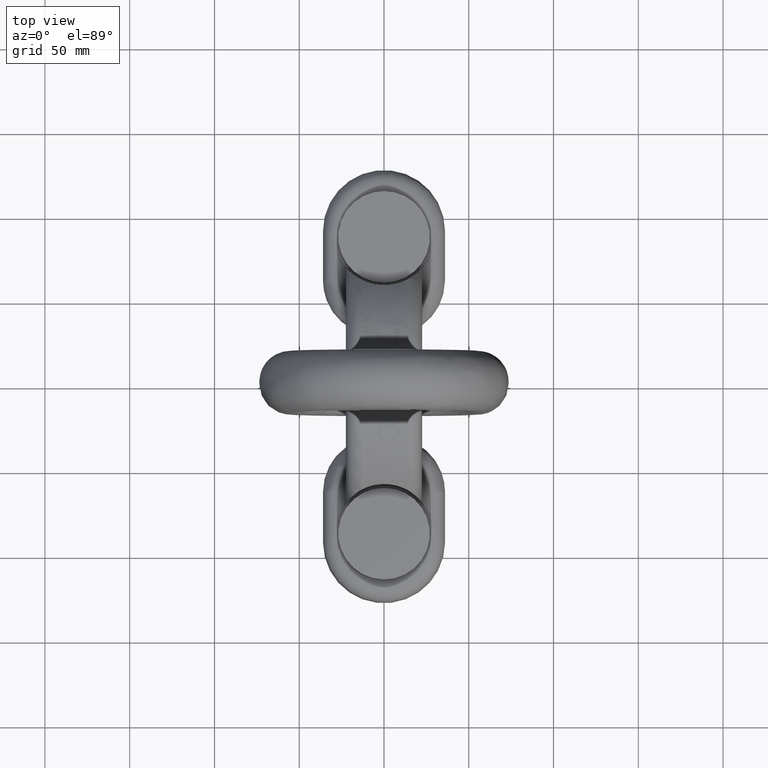
[diagram: clean part render]
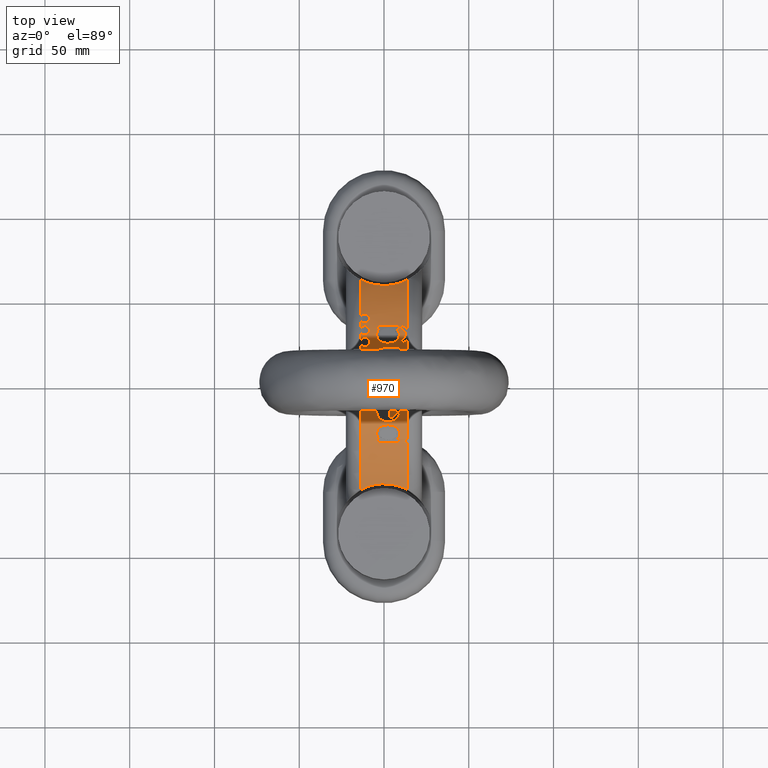
[diagram: same view with one face highlighted and labeled with its STEP entity id]
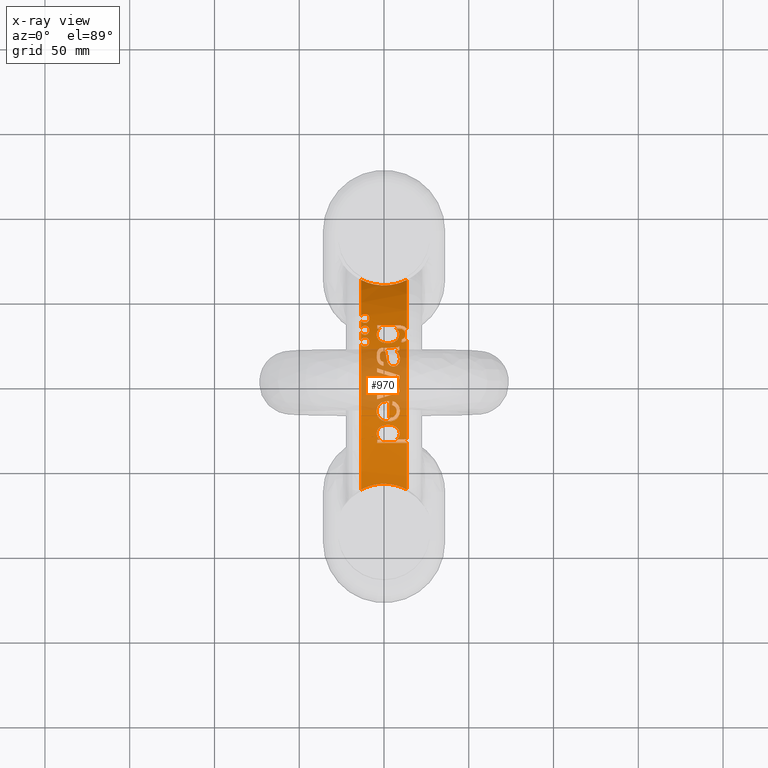
[diagram: x-ray of the same camera — body ghosted, the highlighted face saturated]
A machine part, top view. The second image highlights one B-rep face of the part: STEP entity #970.
The next image is the same camera in x-ray: the body ghosted, the highlighted face saturated — about 29% of this face is hidden behind the body in this view.
In plain terms, the highlighted cylindrical surface (partial cylindrical patch) has radius 76 mm, axis along (-1, 0, 0).
Its self-contained STEP definition (entity closure, byte-faithful):
#970=ADVANCED_FACE('',(#1472,#1473,#1474,#1475),#1137,.T.);
#1137=CYLINDRICAL_SURFACE('',#3546,76.);
#1175=LINE('',#4634,#1301);
#1176=LINE('',#4639,#1302);
#1177=LINE('',#4672,#1303);
#1178=LINE('',#4745,#1304);
#1301=VECTOR('',#3758,1.);
#1302=VECTOR('',#3761,1.);
#1303=VECTOR('',#3766,1.);
#1304=VECTOR('',#3773,1.);
#1472=FACE_BOUND('',#1522,.T.);
#1473=FACE_BOUND('',#1523,.T.);
#1474=FACE_BOUND('',#1524,.T.);
#1475=FACE_BOUND('',#1525,.T.);
#1522=EDGE_LOOP('',(#2013,#2014,#2015,#2016,#2017,#2018,#2019,#2020,#2021,
#2022,#2023,#2024,#2025,#2026,#2027,#2028,#2029,#2030,#2031));
#1523=EDGE_LOOP('',(#2032,#2033,#2034,#2035,#2036,#2037,#2038,#2039,#2040,
#2041,#2042,#2043,#2044,#2045,#2046,#2047,#2048));
#1524=EDGE_LOOP('',(#2049,#2050,#2051,#2052,#2053,#2054,#2055,#2056,#2057));
#1525=EDGE_LOOP('',(#2058,#2059,#2060,#2061,#2062,#2063,#2064,#2065,#2066,
#2067,#2068,#2069,#2070,#2071,#2072,#2073,#2074,#2075,#2076,#2077,#2078,
#2079,#2080,#2081,#2082,#2083,#2084,#2085,#2086,#2087,#2088,#2089,#2090));
#1715=B_SPLINE_CURVE_WITH_KNOTS('',3,(#4299,#4300,#4301,#4302,#4303,#4304,
#4305,#4306,#4307,#4308,#4309,#4310,#4311,#4312,#4313,#4314,#4315,#4316,
#4317,#4318,#4319,#4320,#4321,#4322,#4323,#4324,#4325,#4326,#4327,#4328,
#4329,#4330,#4331,#4332,#4333,#4334,#4335,#4336,#4337,#4338,#4339,#4340,
#4341,#4342,#4343,#4344,#4345,#4346,#4347,#4348,#4349,#4350,#4351,#4352,
#4353,#4354,#4355,#4356,#4357,#4358,#4359,#4360,#4361,#4362),
 .UNSPECIFIED.,.F.,.F.,(4,3,3,3,3,3,3,3,3,3,3,3,3,3,3,3,3,3,3,3,3,4),(0.,
0.499553323627809,0.749371464160478,0.834029731021007,0.889946196213394,
0.926900012780014,0.951339516787306,0.967517643940031,0.978240016786041,
0.985357940098359,0.990093348115217,0.993253019709945,0.995369813175978,
0.996795789510876,0.997763618787141,0.99842727507769,0.99888898333824,0.999371387305127,
0.999590041038616,0.999773232524997,0.999908553322733,1.),.UNSPECIFIED.);
#1716=B_SPLINE_CURVE_WITH_KNOTS('',3,(#4364,#4365,#4366,#4367,#4368,#4369,
#4370,#4371,#4372,#4373),.UNSPECIFIED.,.F.,.F.,(4,3,3,4),(0.,0.133710785063057,
0.662259419794802,1.),.UNSPECIFIED.);
#1717=B_SPLINE_CURVE_WITH_KNOTS('',3,(#4395,#4396,#4397,#4398,#4399,#4400,
#4401,#4402,#4403,#4404),.UNSPECIFIED.,.F.,.F.,(4,3,3,4),(0.,0.284453103095376,
0.642222047728131,1.),.UNSPECIFIED.);
#1718=B_SPLINE_CURVE_WITH_KNOTS('',3,(#4414,#4415,#4416,#4417,#4418,#4419,
#4420,#4421,#4422,#4423),.UNSPECIFIED.,.F.,.F.,(4,3,3,4),(0.,0.298142687831318,
0.596528706251679,1.),.UNSPECIFIED.);
#1719=B_SPLINE_CURVE_WITH_KNOTS('',3,(#4425,#4426,#4427,#4428,#4429,#4430,
#4431,#4432,#4433,#4434),.UNSPECIFIED.,.F.,.F.,(4,2,2,2,4),(0.,0.25,0.5,
0.75,1.),.UNSPECIFIED.);
#1720=B_SPLINE_CURVE_WITH_KNOTS('',3,(#4436,#4437,#4438,#4439,#4440,#4441),
 .UNSPECIFIED.,.F.,.F.,(4,2,4),(0.,0.5,1.),.UNSPECIFIED.);
#1721=B_SPLINE_CURVE_WITH_KNOTS('',3,(#4445,#4446,#4447,#4448,#4449,#4450,
#4451,#4452,#4453,#4454),.UNSPECIFIED.,.F.,.F.,(4,3,3,4),(0.,0.296832126679018,
0.593472938598659,1.),.UNSPECIFIED.);
#1722=B_SPLINE_CURVE_WITH_KNOTS('',3,(#4456,#4457,#4458,#4459,#4460,#4461,
#4462,#4463,#4464,#4465),.UNSPECIFIED.,.F.,.F.,(4,3,3,4),(0.,0.354196209814298,
0.676989925990566,1.),.UNSPECIFIED.);
#1723=B_SPLINE_CURVE_WITH_KNOTS('',3,(#4467,#4468,#4469,#4470,#4471,#4472,
#4473,#4474,#4475,#4476),.UNSPECIFIED.,.F.,.F.,(4,3,3,4),(0.,0.284114592982945,
0.568540063726114,1.),.UNSPECIFIED.);
#1724=B_SPLINE_CURVE_WITH_KNOTS('',3,(#4478,#4479,#4480,#4481,#4482,#4483,
#4484,#4485,#4486,#4487),.UNSPECIFIED.,.F.,.F.,(4,3,3,4),(0.,0.294959874581349,
0.590606892855111,1.),.UNSPECIFIED.);
#1725=B_SPLINE_CURVE_WITH_KNOTS('',3,(#4489,#4490,#4491,#4492,#4493,#4494),
 .UNSPECIFIED.,.F.,.F.,(4,2,4),(0.,0.5,1.),.UNSPECIFIED.);
#1726=B_SPLINE_CURVE_WITH_KNOTS('',3,(#4496,#4497,#4498,#4499,#4500,#4501,
#4502,#4503,#4504,#4505),.UNSPECIFIED.,.F.,.F.,(4,3,3,4),(0.,0.324183659825358,
0.768442533900152,1.),.UNSPECIFIED.);
#1727=B_SPLINE_CURVE_WITH_KNOTS('',3,(#4509,#4510,#4511,#4512,#4513,#4514,
#4515,#4516,#4517,#4518),.UNSPECIFIED.,.F.,.F.,(4,3,3,4),(0.,0.276896493135415,
0.659736801525129,1.),.UNSPECIFIED.);
#1728=B_SPLINE_CURVE_WITH_KNOTS('',3,(#4520,#4521,#4522,#4523,#4524,#4525,
#4526,#4527),.UNSPECIFIED.,.F.,.F.,(4,2,2,4),(0.,0.25,0.5,1.),
 .UNSPECIFIED.);
#1729=B_SPLINE_CURVE_WITH_KNOTS('',3,(#4529,#4530,#4531,#4532,#4533,#4534,
#4535,#4536,#4537,#4538),.UNSPECIFIED.,.F.,.F.,(4,3,3,4),(0.,0.260037946082512,
0.650590980353065,1.),.UNSPECIFIED.);
#1730=B_SPLINE_CURVE_WITH_KNOTS('',3,(#4540,#4541,#4542,#4543,#4544,#4545),
 .UNSPECIFIED.,.F.,.F.,(4,2,4),(0.,0.5,1.),.UNSPECIFIED.);
#1731=B_SPLINE_CURVE_WITH_KNOTS('',3,(#4547,#4548,#4549,#4550,#4551,#4552,
#4553,#4554,#4555,#4556),.UNSPECIFIED.,.F.,.F.,(4,3,3,4),(0.,0.264779171228296,
0.529684968792838,1.),.UNSPECIFIED.);
#1732=B_SPLINE_CURVE_WITH_KNOTS('',3,(#4560,#4561,#4562,#4563,#4564,#4565,
#4566,#4567,#4568,#4569),.UNSPECIFIED.,.F.,.F.,(4,3,3,4),(0.,0.24758597598258,
0.664592509374991,1.),.UNSPECIFIED.);
#1733=B_SPLINE_CURVE_WITH_KNOTS('',3,(#4571,#4572,#4573,#4574,#4575,#4576,
#4577,#4578,#4579,#4580,#4581,#4582,#4583,#4584,#4585,#4586),
 .UNSPECIFIED.,.F.,.F.,(4,3,3,3,3,4),(0.,0.199301618406926,0.396697892829679,
0.63669305524593,0.865311432549222,1.),.UNSPECIFIED.);
#1734=B_SPLINE_CURVE_WITH_KNOTS('',3,(#4588,#4589,#4590,#4591,#4592,#4593,
#4594,#4595,#4596,#4597),.UNSPECIFIED.,.F.,.F.,(4,3,3,4),(0.,0.291501684975399,
0.583664615939929,1.),.UNSPECIFIED.);
#1735=B_SPLINE_CURVE_WITH_KNOTS('',3,(#4601,#4602,#4603,#4604),
 .UNSPECIFIED.,.F.,.F.,(4,4),(0.,1.),.UNSPECIFIED.);
#1736=B_SPLINE_CURVE_WITH_KNOTS('',3,(#4606,#4607,#4608,#4609,#4610,#4611),
 .UNSPECIFIED.,.F.,.F.,(4,2,4),(0.,0.5,1.),.UNSPECIFIED.);
#1737=B_SPLINE_CURVE_WITH_KNOTS('',3,(#4613,#4614,#4615,#4616,#4617,#4618,
#4619,#4620,#4621,#4622,#4623,#4624,#4625,#4626),.UNSPECIFIED.,.F.,.F.,
(4,2,2,2,2,2,4),(0.,0.125,0.25,0.5,0.625,0.75,1.),.UNSPECIFIED.);
#1738=B_SPLINE_CURVE_WITH_KNOTS('',3,(#4628,#4629,#4630,#4631,#4632,#4633),
 .UNSPECIFIED.,.F.,.F.,(4,2,4),(0.,0.5,1.),.UNSPECIFIED.);
#1739=B_SPLINE_CURVE_WITH_KNOTS('',3,(#4643,#4644,#4645,#4646,#4647,#4648),
 .UNSPECIFIED.,.F.,.F.,(4,2,4),(0.,0.500000000000001,1.),.UNSPECIFIED.);
#1740=B_SPLINE_CURVE_WITH_KNOTS('',3,(#4650,#4651,#4652,#4653,#4654,#4655),
 .UNSPECIFIED.,.F.,.F.,(4,2,4),(0.,0.5,1.),.UNSPECIFIED.);
#1741=B_SPLINE_CURVE_WITH_KNOTS('',3,(#4657,#4658,#4659,#4660,#4661,#4662,
#4663,#4664,#4665,#4666,#4667,#4668),.UNSPECIFIED.,.F.,.F.,(4,2,2,2,2,4),
(0.,0.125,0.25,0.5,0.75,1.),.UNSPECIFIED.);
#1742=B_SPLINE_CURVE_WITH_KNOTS('',3,(#4676,#4677,#4678,#4679),
 .UNSPECIFIED.,.F.,.F.,(4,4),(0.,1.),.UNSPECIFIED.);
#1743=B_SPLINE_CURVE_WITH_KNOTS('',3,(#4681,#4682,#4683,#4684,#4685,#4686,
#4687,#4688,#4689,#4690,#4691,#4692,#4693),.UNSPECIFIED.,.F.,.F.,(4,3,3,
3,4),(0.,0.402327780639732,0.633477859954777,0.865733413213922,1.),
 .UNSPECIFIED.);
#1744=B_SPLINE_CURVE_WITH_KNOTS('',3,(#4697,#4698,#4699,#4700,#4701,#4702,
#4703,#4704,#4705,#4706),.UNSPECIFIED.,.F.,.F.,(4,3,3,4),(0.,0.25743847312858,
0.61542123166661,1.),.UNSPECIFIED.);
#1745=B_SPLINE_CURVE_WITH_KNOTS('',3,(#4708,#4709,#4710,#4711,#4712,#4713),
 .UNSPECIFIED.,.F.,.F.,(4,2,4),(0.,0.5,1.),.UNSPECIFIED.);
#1746=B_SPLINE_CURVE_WITH_KNOTS('',3,(#4715,#4716,#4717,#4718,#4719,#4720,
#4721,#4722),.UNSPECIFIED.,.F.,.F.,(4,2,2,4),(0.,0.499999999999999,0.75,
1.),.UNSPECIFIED.);
#1747=B_SPLINE_CURVE_WITH_KNOTS('',3,(#4724,#4725,#4726,#4727,#4728,#4729,
#4730,#4731,#4732,#4733,#4734,#4735,#4736,#4737,#4738,#4739,#4740,#4741),
 .UNSPECIFIED.,.F.,.F.,(4,2,2,2,2,2,2,2,4),(0.,0.125,0.25,0.375,0.5,0.625,
0.75,0.875,1.),.UNSPECIFIED.);
#1748=B_SPLINE_CURVE_WITH_KNOTS('',3,(#4749,#4750,#4751,#4752,#4753,#4754,
#4755,#4756),.UNSPECIFIED.,.F.,.F.,(4,2,2,4),(0.,0.25,0.5,1.),
 .UNSPECIFIED.);
#1749=B_SPLINE_CURVE_WITH_KNOTS('',3,(#4758,#4759,#4760,#4761),
 .UNSPECIFIED.,.F.,.F.,(4,4),(0.,1.),.UNSPECIFIED.);
#1750=B_SPLINE_CURVE_WITH_KNOTS('',3,(#4765,#4766,#4767,#4768,#4769,#4770,
#4771,#4772,#4773,#4774),.UNSPECIFIED.,.F.,.F.,(4,2,2,2,4),(0.,0.25,0.5,
0.75,1.),.UNSPECIFIED.);
#1751=B_SPLINE_CURVE_WITH_KNOTS('',3,(#4778,#4779,#4780,#4781,#4782,#4783,
#4784,#4785,#4786,#4787,#4788,#4789,#4790,#4791),.UNSPECIFIED.,.F.,.F.,
(4,2,2,2,2,2,4),(0.,0.125,0.25,0.5,0.75,0.875,1.),.UNSPECIFIED.);
#1752=B_SPLINE_CURVE_WITH_KNOTS('',3,(#4795,#4796,#4797,#4798,#4799,#4800,
#4801,#4802,#4803,#4804,#4805,#4806,#4807,#4808,#4809,#4810,#4811,#4812,
#4813,#4814,#4815,#4816,#4817,#4818,#4819,#4820,#4821,#4822,#4823,#4824,
#4825,#4826,#4827,#4828,#4829,#4830,#4831,#4832,#4833,#4834,#4835,#4836,
#4837,#4838,#4839,#4840,#4841,#4842,#4843,#4844,#4845,#4846),
 .UNSPECIFIED.,.F.,.F.,(4,3,3,3,3,3,3,3,3,3,3,3,3,3,3,3,3,4),(0.,0.00722189099461879,
0.0819470114587513,0.149727595056581,0.209987986107805,0.266619067327077,
0.324400594364483,0.386934963013116,0.456008222385771,0.501572895005581,
0.57609089120779,0.650872559144479,0.721240767220633,0.785482943525094,
0.845444775513933,0.904032424174162,0.964020916351862,1.),.UNSPECIFIED.);
#1753=B_SPLINE_CURVE_WITH_KNOTS('',3,(#4850,#4851,#4852,#4853,#4854,#4855,
#4856,#4857,#4858,#4859,#4860,#4861,#4862,#4863,#4864,#4865,#4866,#4867,
#4868,#4869,#4870,#4871,#4872,#4873,#4874,#4875,#4876,#4877,#4878,#4879,
#4880,#4881,#4882,#4883,#4884,#4885,#4886,#4887,#4888,#4889,#4890,#4891,
#4892,#4893,#4894,#4895,#4896,#4897,#4898,#4899,#4900,#4901),
 .UNSPECIFIED.,.F.,.F.,(4,3,3,3,3,3,3,3,3,3,3,3,3,3,3,3,3,4),(0.,0.00184094331456729,
0.0730444419895021,0.140536422724141,0.203530161321316,0.263899704372033,
0.324661889773414,0.388343687194675,0.456093309917496,0.501150566745926,
0.571790429786009,0.642572388444154,0.711051149666856,0.776181598592327,
0.838854574093468,0.900590342183884,0.962978705958845,1.),.UNSPECIFIED.);
#1754=B_SPLINE_CURVE_WITH_KNOTS('',3,(#4905,#4906,#4907,#4908,#4909,#4910,
#4911,#4912,#4913,#4914),.UNSPECIFIED.,.F.,.F.,(4,2,2,2,4),(0.,0.25,0.5,
0.75,1.),.UNSPECIFIED.);
#1934=CIRCLE('',#3513,76.);
#1935=CIRCLE('',#3515,76.);
#1936=CIRCLE('',#3517,76.);
#1937=CIRCLE('',#3519,76.);
#1938=CIRCLE('',#3523,76.);
#1939=CIRCLE('',#3525,76.);
#1940=CIRCLE('',#3527,76.);
#1941=CIRCLE('',#3528,76.);
#1942=CIRCLE('',#3531,76.);
#1943=CIRCLE('',#3533,76.);
#1944=CIRCLE('',#3534,76.);
#1945=CIRCLE('',#3535,76.);
#1946=CIRCLE('',#3536,76.);
#1947=CIRCLE('',#3538,76.);
#1948=CIRCLE('',#3539,76.);
#1949=CIRCLE('',#3540,76.);
#1950=CIRCLE('',#3541,76.);
#1951=CIRCLE('',#3542,76.);
#1952=CIRCLE('',#3543,76.);
#1953=CIRCLE('',#3544,76.);
#1954=CIRCLE('',#3545,76.);
#2013=ORIENTED_EDGE('',*,*,#3086,.F.);
#2014=ORIENTED_EDGE('',*,*,#3087,.F.);
#2015=ORIENTED_EDGE('',*,*,#3088,.F.);
#2016=ORIENTED_EDGE('',*,*,#3089,.F.);
#2017=ORIENTED_EDGE('',*,*,#3090,.F.);
#2018=ORIENTED_EDGE('',*,*,#3091,.F.);
#2019=ORIENTED_EDGE('',*,*,#3092,.F.);
#2020=ORIENTED_EDGE('',*,*,#3093,.F.);
#2021=ORIENTED_EDGE('',*,*,#3094,.F.);
#2022=ORIENTED_EDGE('',*,*,#3095,.F.);
#2023=ORIENTED_EDGE('',*,*,#3096,.F.);
#2024=ORIENTED_EDGE('',*,*,#3097,.F.);
#2025=ORIENTED_EDGE('',*,*,#3098,.F.);
#2026=ORIENTED_EDGE('',*,*,#3099,.F.);
#2027=ORIENTED_EDGE('',*,*,#3100,.F.);
#2028=ORIENTED_EDGE('',*,*,#3101,.F.);
#2029=ORIENTED_EDGE('',*,*,#3102,.F.);
#2030=ORIENTED_EDGE('',*,*,#3103,.F.);
#2031=ORIENTED_EDGE('',*,*,#3104,.F.);
#2032=ORIENTED_EDGE('',*,*,#3105,.F.);
#2033=ORIENTED_EDGE('',*,*,#3106,.F.);
#2034=ORIENTED_EDGE('',*,*,#3107,.F.);
#2035=ORIENTED_EDGE('',*,*,#3108,.F.);
#2036=ORIENTED_EDGE('',*,*,#3109,.F.);
#2037=ORIENTED_EDGE('',*,*,#3110,.F.);
#2038=ORIENTED_EDGE('',*,*,#3111,.F.);
#2039=ORIENTED_EDGE('',*,*,#3112,.F.);
#2040=ORIENTED_EDGE('',*,*,#3113,.F.);
#2041=ORIENTED_EDGE('',*,*,#3114,.F.);
#2042=ORIENTED_EDGE('',*,*,#3115,.F.);
#2043=ORIENTED_EDGE('',*,*,#3116,.F.);
#2044=ORIENTED_EDGE('',*,*,#3117,.F.);
#2045=ORIENTED_EDGE('',*,*,#3118,.F.);
#2046=ORIENTED_EDGE('',*,*,#3119,.F.);
#2047=ORIENTED_EDGE('',*,*,#3120,.F.);
#2048=ORIENTED_EDGE('',*,*,#3121,.F.);
#2049=ORIENTED_EDGE('',*,*,#3122,.F.);
#2050=ORIENTED_EDGE('',*,*,#3123,.F.);
#2051=ORIENTED_EDGE('',*,*,#3124,.F.);
#2052=ORIENTED_EDGE('',*,*,#3125,.F.);
#2053=ORIENTED_EDGE('',*,*,#3126,.F.);
#2054=ORIENTED_EDGE('',*,*,#3127,.F.);
#2055=ORIENTED_EDGE('',*,*,#3128,.F.);
#2056=ORIENTED_EDGE('',*,*,#3129,.F.);
#2057=ORIENTED_EDGE('',*,*,#3130,.F.);
#2058=ORIENTED_EDGE('',*,*,#3131,.F.);
#2059=ORIENTED_EDGE('',*,*,#3132,.F.);
#2060=ORIENTED_EDGE('',*,*,#3133,.F.);
#2061=ORIENTED_EDGE('',*,*,#3134,.F.);
#2062=ORIENTED_EDGE('',*,*,#3135,.F.);
#2063=ORIENTED_EDGE('',*,*,#3136,.F.);
#2064=ORIENTED_EDGE('',*,*,#3137,.F.);
#2065=ORIENTED_EDGE('',*,*,#3138,.F.);
#2066=ORIENTED_EDGE('',*,*,#3139,.F.);
#2067=ORIENTED_EDGE('',*,*,#3140,.T.);
#2068=ORIENTED_EDGE('',*,*,#3141,.F.);
#2069=ORIENTED_EDGE('',*,*,#3142,.F.);
#2070=ORIENTED_EDGE('',*,*,#3143,.F.);
#2071=ORIENTED_EDGE('',*,*,#3144,.F.);
#2072=ORIENTED_EDGE('',*,*,#3145,.F.);
#2073=ORIENTED_EDGE('',*,*,#3146,.F.);
#2074=ORIENTED_EDGE('',*,*,#3147,.F.);
#2075=ORIENTED_EDGE('',*,*,#3148,.F.);
#2076=ORIENTED_EDGE('',*,*,#3149,.F.);
#2077=ORIENTED_EDGE('',*,*,#3150,.F.);
#2078=ORIENTED_EDGE('',*,*,#3151,.F.);
#2079=ORIENTED_EDGE('',*,*,#3152,.F.);
#2080=ORIENTED_EDGE('',*,*,#3153,.T.);
#2081=ORIENTED_EDGE('',*,*,#3154,.F.);
#2082=ORIENTED_EDGE('',*,*,#3155,.T.);
#2083=ORIENTED_EDGE('',*,*,#3156,.T.);
#2084=ORIENTED_EDGE('',*,*,#3157,.T.);
#2085=ORIENTED_EDGE('',*,*,#3158,.T.);
#2086=ORIENTED_EDGE('',*,*,#3159,.T.);
#2087=ORIENTED_EDGE('',*,*,#3160,.T.);
#2088=ORIENTED_EDGE('',*,*,#3161,.T.);
#2089=ORIENTED_EDGE('',*,*,#3162,.T.);
#2090=ORIENTED_EDGE('',*,*,#3163,.T.);
#2821=VERTEX_POINT('',#4293);
#2822=VERTEX_POINT('',#4294);
#2823=VERTEX_POINT('',#4296);
#2824=VERTEX_POINT('',#4298);
#2825=VERTEX_POINT('',#4363);
#2826=VERTEX_POINT('',#4374);
#2827=VERTEX_POINT('',#4376);
#2828=VERTEX_POINT('',#4378);
#2829=VERTEX_POINT('',#4380);
#2830=VERTEX_POINT('',#4382);
#2831=VERTEX_POINT('',#4384);
#2832=VERTEX_POINT('',#4386);
#2833=VERTEX_POINT('',#4388);
#2834=VERTEX_POINT('',#4390);
#2835=VERTEX_POINT('',#4392);
#2836=VERTEX_POINT('',#4394);
#2837=VERTEX_POINT('',#4405);
#2838=VERTEX_POINT('',#4407);
#2839=VERTEX_POINT('',#4409);
#2840=VERTEX_POINT('',#4412);
#2841=VERTEX_POINT('',#4413);
#2842=VERTEX_POINT('',#4424);
#2843=VERTEX_POINT('',#4435);
#2844=VERTEX_POINT('',#4442);
#2845=VERTEX_POINT('',#4444);
#2846=VERTEX_POINT('',#4455);
#2847=VERTEX_POINT('',#4466);
#2848=VERTEX_POINT('',#4477);
#2849=VERTEX_POINT('',#4488);
#2850=VERTEX_POINT('',#4495);
#2851=VERTEX_POINT('',#4506);
#2852=VERTEX_POINT('',#4508);
#2853=VERTEX_POINT('',#4519);
#2854=VERTEX_POINT('',#4528);
#2855=VERTEX_POINT('',#4539);
#2856=VERTEX_POINT('',#4546);
#2857=VERTEX_POINT('',#4558);
#2858=VERTEX_POINT('',#4559);
#2859=VERTEX_POINT('',#4570);
#2860=VERTEX_POINT('',#4587);
#2861=VERTEX_POINT('',#4598);
#2862=VERTEX_POINT('',#4600);
#2863=VERTEX_POINT('',#4605);
#2864=VERTEX_POINT('',#4612);
#2865=VERTEX_POINT('',#4627);
#2866=VERTEX_POINT('',#4635);
#2867=VERTEX_POINT('',#4636);
#2868=VERTEX_POINT('',#4638);
#2869=VERTEX_POINT('',#4640);
#2870=VERTEX_POINT('',#4642);
#2871=VERTEX_POINT('',#4649);
#2872=VERTEX_POINT('',#4656);
#2873=VERTEX_POINT('',#4669);
#2874=VERTEX_POINT('',#4671);
#2875=VERTEX_POINT('',#4673);
#2876=VERTEX_POINT('',#4675);
#2877=VERTEX_POINT('',#4680);
#2878=VERTEX_POINT('',#4694);
#2879=VERTEX_POINT('',#4696);
#2880=VERTEX_POINT('',#4707);
#2881=VERTEX_POINT('',#4714);
#2882=VERTEX_POINT('',#4723);
#2883=VERTEX_POINT('',#4742);
#2884=VERTEX_POINT('',#4744);
#2885=VERTEX_POINT('',#4746);
#2886=VERTEX_POINT('',#4748);
#2887=VERTEX_POINT('',#4757);
#2888=VERTEX_POINT('',#4762);
#2889=VERTEX_POINT('',#4764);
#2890=VERTEX_POINT('',#4775);
#2891=VERTEX_POINT('',#4777);
#2892=VERTEX_POINT('',#4792);
#2893=VERTEX_POINT('',#4794);
#2894=VERTEX_POINT('',#4847);
#2895=VERTEX_POINT('',#4849);
#2896=VERTEX_POINT('',#4902);
#2897=VERTEX_POINT('',#4904);
#2898=VERTEX_POINT('',#4915);
#3086=EDGE_CURVE('',#2821,#2822,#3490,.T.);
#3087=EDGE_CURVE('',#2823,#2821,#1934,.T.);
#3088=EDGE_CURVE('',#2824,#2823,#3491,.T.);
#3089=EDGE_CURVE('',#2825,#2824,#1715,.T.);
#3090=EDGE_CURVE('',#2826,#2825,#1716,.T.);
#3091=EDGE_CURVE('',#2827,#2826,#1935,.T.);
#3092=EDGE_CURVE('',#2828,#2827,#3492,.T.);
#3093=EDGE_CURVE('',#2829,#2828,#1936,.T.);
#3094=EDGE_CURVE('',#2830,#2829,#3493,.T.);
#3095=EDGE_CURVE('',#2831,#2830,#1937,.T.);
#3096=EDGE_CURVE('',#2832,#2831,#3494,.T.);
#3097=EDGE_CURVE('',#2833,#2832,#3495,.T.);
#3098=EDGE_CURVE('',#2834,#2833,#3496,.T.);
#3099=EDGE_CURVE('',#2835,#2834,#1938,.T.);
#3100=EDGE_CURVE('',#2836,#2835,#3497,.T.);
#3101=EDGE_CURVE('',#2837,#2836,#1717,.T.);
#3102=EDGE_CURVE('',#2838,#2837,#1939,.T.);
#3103=EDGE_CURVE('',#2839,#2838,#3498,.T.);
#3104=EDGE_CURVE('',#2822,#2839,#1940,.T.);
#3105=EDGE_CURVE('',#2840,#2841,#1941,.T.);
#3106=EDGE_CURVE('',#2842,#2840,#1718,.T.);
#3107=EDGE_CURVE('',#2843,#2842,#1719,.T.);
#3108=EDGE_CURVE('',#2844,#2843,#1720,.T.);
#3109=EDGE_CURVE('',#2845,#2844,#3499,.T.);
#3110=EDGE_CURVE('',#2846,#2845,#1721,.T.);
#3111=EDGE_CURVE('',#2847,#2846,#1722,.T.);
#3112=EDGE_CURVE('',#2848,#2847,#1723,.T.);
#3113=EDGE_CURVE('',#2849,#2848,#1724,.T.);
#3114=EDGE_CURVE('',#2850,#2849,#1725,.T.);
#3115=EDGE_CURVE('',#2851,#2850,#1726,.T.);
#3116=EDGE_CURVE('',#2852,#2851,#3500,.T.);
#3117=EDGE_CURVE('',#2853,#2852,#1727,.T.);
#3118=EDGE_CURVE('',#2854,#2853,#1728,.T.);
#3119=EDGE_CURVE('',#2855,#2854,#1729,.T.);
#3120=EDGE_CURVE('',#2856,#2855,#1730,.T.);
#3121=EDGE_CURVE('',#2841,#2856,#1731,.T.);
#3122=EDGE_CURVE('',#2857,#2858,#1942,.T.);
#3123=EDGE_CURVE('',#2859,#2857,#1732,.T.);
#3124=EDGE_CURVE('',#2860,#2859,#1733,.T.);
#3125=EDGE_CURVE('',#2861,#2860,#1734,.T.);
#3126=EDGE_CURVE('',#2862,#2861,#3501,.T.);
#3127=EDGE_CURVE('',#2863,#2862,#1735,.T.);
#3128=EDGE_CURVE('',#2864,#2863,#1736,.T.);
#3129=EDGE_CURVE('',#2865,#2864,#1737,.T.);
#3130=EDGE_CURVE('',#2858,#2865,#1738,.T.);
#3131=EDGE_CURVE('',#2866,#2867,#1175,.T.);
#3132=EDGE_CURVE('',#2868,#2866,#1943,.T.);
#3133=EDGE_CURVE('',#2869,#2868,#1176,.T.);
#3134=EDGE_CURVE('',#2870,#2869,#1944,.T.);
#3135=EDGE_CURVE('',#2871,#2870,#1739,.T.);
#3136=EDGE_CURVE('',#2872,#2871,#1740,.T.);
#3137=EDGE_CURVE('',#2873,#2872,#1741,.T.);
#3138=EDGE_CURVE('',#2874,#2873,#1945,.T.);
#3139=EDGE_CURVE('',#2875,#2874,#1177,.T.);
#3140=EDGE_CURVE('',#2875,#2876,#1946,.T.);
#3141=EDGE_CURVE('',#2877,#2876,#1742,.T.);
#3142=EDGE_CURVE('',#2878,#2877,#1743,.T.);
#3143=EDGE_CURVE('',#2879,#2878,#3502,.T.);
#3144=EDGE_CURVE('',#2880,#2879,#1744,.T.);
#3145=EDGE_CURVE('',#2881,#2880,#1745,.T.);
#3146=EDGE_CURVE('',#2882,#2881,#1746,.T.);
#3147=EDGE_CURVE('',#2883,#2882,#1747,.T.);
#3148=EDGE_CURVE('',#2884,#2883,#1947,.T.);
#3149=EDGE_CURVE('',#2885,#2884,#1178,.T.);
#3150=EDGE_CURVE('',#2886,#2885,#1948,.T.);
#3151=EDGE_CURVE('',#2887,#2886,#1748,.T.);
#3152=EDGE_CURVE('',#2888,#2887,#1749,.T.);
#3153=EDGE_CURVE('',#2888,#2889,#1949,.T.);
#3154=EDGE_CURVE('',#2890,#2889,#1750,.T.);
#3155=EDGE_CURVE('',#2890,#2891,#1950,.T.);
#3156=EDGE_CURVE('',#2891,#2892,#1751,.T.);
#3157=EDGE_CURVE('',#2892,#2893,#1951,.T.);
#3158=EDGE_CURVE('',#2893,#2894,#1752,.T.);
#3159=EDGE_CURVE('',#2894,#2895,#1952,.T.);
#3160=EDGE_CURVE('',#2895,#2896,#1753,.T.);
#3161=EDGE_CURVE('',#2896,#2897,#1953,.T.);
#3162=EDGE_CURVE('',#2897,#2898,#1754,.T.);
#3163=EDGE_CURVE('',#2898,#2867,#1954,.T.);
#3490=ELLIPSE('',#3512,249.79824473872,76.);
#3491=ELLIPSE('',#3514,293.282945947342,76.);
#3492=ELLIPSE('',#3516,298.780166494863,76.);
#3493=ELLIPSE('',#3518,254.759245322851,76.);
#3494=ELLIPSE('',#3520,282.041712101725,76.);
#3495=ELLIPSE('',#3521,306.777021490407,76.);
#3496=ELLIPSE('',#3522,285.650358482438,76.);
#3497=ELLIPSE('',#3524,300.312014124393,76.);
#3498=ELLIPSE('',#3526,264.547886392896,76.);
#3499=ELLIPSE('',#3529,76.8551370067967,76.);
#3500=ELLIPSE('',#3530,76.6476583968658,76.);
#3501=ELLIPSE('',#3532,76.5866383611652,76.);
#3502=ELLIPSE('',#3537,77.0275381584992,76.);
#3512=AXIS2_PLACEMENT_3D('',#4292,#3716,#3717);
#3513=AXIS2_PLACEMENT_3D('',#4295,#3718,#3719);
#3514=AXIS2_PLACEMENT_3D('',#4297,#3720,#3721);
#3515=AXIS2_PLACEMENT_3D('',#4375,#3722,#3723);
#3516=AXIS2_PLACEMENT_3D('',#4377,#3724,#3725);
#3517=AXIS2_PLACEMENT_3D('',#4379,#3726,#3727);
#3518=AXIS2_PLACEMENT_3D('',#4381,#3728,#3729);
#3519=AXIS2_PLACEMENT_3D('',#4383,#3730,#3731);
#3520=AXIS2_PLACEMENT_3D('',#4385,#3732,#3733);
#3521=AXIS2_PLACEMENT_3D('',#4387,#3734,#3735);
#3522=AXIS2_PLACEMENT_3D('',#4389,#3736,#3737);
#3523=AXIS2_PLACEMENT_3D('',#4391,#3738,#3739);
#3524=AXIS2_PLACEMENT_3D('',#4393,#3740,#3741);
#3525=AXIS2_PLACEMENT_3D('',#4406,#3742,#3743);
#3526=AXIS2_PLACEMENT_3D('',#4408,#3744,#3745);
#3527=AXIS2_PLACEMENT_3D('',#4410,#3746,#3747);
#3528=AXIS2_PLACEMENT_3D('',#4411,#3748,#3749);
#3529=AXIS2_PLACEMENT_3D('',#4443,#3750,#3751);
#3530=AXIS2_PLACEMENT_3D('',#4507,#3752,#3753);
#3531=AXIS2_PLACEMENT_3D('',#4557,#3754,#3755);
#3532=AXIS2_PLACEMENT_3D('',#4599,#3756,#3757);
#3533=AXIS2_PLACEMENT_3D('',#4637,#3759,#3760);
#3534=AXIS2_PLACEMENT_3D('',#4641,#3762,#3763);
#3535=AXIS2_PLACEMENT_3D('',#4670,#3764,#3765);
#3536=AXIS2_PLACEMENT_3D('',#4674,#3767,#3768);
#3537=AXIS2_PLACEMENT_3D('',#4695,#3769,#3770);
#3538=AXIS2_PLACEMENT_3D('',#4743,#3771,#3772);
#3539=AXIS2_PLACEMENT_3D('',#4747,#3774,#3775);
#3540=AXIS2_PLACEMENT_3D('',#4763,#3776,#3777);
#3541=AXIS2_PLACEMENT_3D('',#4776,#3778,#3779);
#3542=AXIS2_PLACEMENT_3D('',#4793,#3780,#3781);
#3543=AXIS2_PLACEMENT_3D('',#4848,#3782,#3783);
#3544=AXIS2_PLACEMENT_3D('',#4903,#3784,#3785);
#3545=AXIS2_PLACEMENT_3D('',#4916,#3786,#3787);
#3546=AXIS2_PLACEMENT_3D('',#4917,#3788,#3789);
#3716=DIRECTION('',(-0.30424553254765,-0.952593646800564,0.));
#3717=DIRECTION('',(-0.952593646800564,0.30424553254765,0.));
#3718=DIRECTION('',(-1.,0.,0.));
#3719=DIRECTION('',(0.,0.,1.));
#3720=DIRECTION('',(-0.259135422124563,0.965840997783965,0.));
#3721=DIRECTION('',(-0.965840997783965,-0.259135422124563,0.));
#3722=DIRECTION('',(-1.,0.,0.));
#3723=DIRECTION('',(0.,0.,1.));
#3724=DIRECTION('',(-0.254367620486973,-0.967107601897429,0.));
#3725=DIRECTION('',(-0.967107601897429,0.254367620486973,0.));
#3726=DIRECTION('',(-1.,0.,0.));
#3727=DIRECTION('',(0.,0.,1.));
#3728=DIRECTION('',(-0.29832087115695,0.954465639943188,0.));
#3729=DIRECTION('',(-0.954465639943188,-0.29832087115695,0.));
#3730=DIRECTION('',(1.,0.,0.));
#3731=DIRECTION('',(0.,0.,-1.));
#3732=DIRECTION('',(0.269463688309298,-0.963010550660142,0.));
#3733=DIRECTION('',(-0.963010550660142,-0.269463688309298,0.));
#3734=DIRECTION('',(0.247736938153878,0.968827337286754,0.));
#3735=DIRECTION('',(-0.968827337286754,0.247736938153878,0.));
#3736=DIRECTION('',(0.266059529572313,0.963956600020851,0.));
#3737=DIRECTION('',(-0.963956600020851,0.266059529572313,0.));
#3738=DIRECTION('',(1.,0.,0.));
#3739=DIRECTION('',(0.,0.,-1.));
#3740=DIRECTION('',(0.253070128484836,-0.96744793661916,0.));
#3741=DIRECTION('',(-0.967447936619159,-0.253070128484836,0.));
#3742=DIRECTION('',(1.,1.68292293657725E-14,0.));
#3743=DIRECTION('',(-1.68336653096434E-14,1.,0.));
#3744=DIRECTION('',(0.28728258250806,0.957845873712207,0.));
#3745=DIRECTION('',(-0.957845873712206,0.28728258250806,0.));
#3746=DIRECTION('',(1.,0.,0.));
#3747=DIRECTION('',(0.,0.,-1.));
#3748=DIRECTION('',(-1.,0.,0.));
#3749=DIRECTION('',(0.,0.,1.));
#3750=DIRECTION('',(0.988873391680753,0.148759588685249,0.));
#3751=DIRECTION('',(-0.148759588685249,0.988873391680753,0.));
#3752=DIRECTION('',(-0.991550186784411,0.129723656623613,0.));
#3753=DIRECTION('',(-0.129723656623613,-0.99155018678441,0.));
#3754=DIRECTION('',(-1.,0.,0.));
#3755=DIRECTION('',(0.,0.,1.));
#3756=DIRECTION('',(0.992340199625962,-0.123535129442222,0.));
#3757=DIRECTION('',(-0.123535129442222,-0.992340199625962,0.));
#3758=DIRECTION('',(1.,0.,0.));
#3759=DIRECTION('',(1.,-4.60499675029417E-16,0.));
#3760=DIRECTION('',(4.56506177888634E-16,1.,0.));
#3761=DIRECTION('',(-1.,0.,0.));
#3762=DIRECTION('',(1.,0.,0.));
#3763=DIRECTION('',(0.,0.,-1.));
#3764=DIRECTION('',(-1.,0.,0.));
#3765=DIRECTION('',(0.,0.,1.));
#3766=DIRECTION('',(-1.,0.,0.));
#3767=DIRECTION('',(-1.,0.,0.));
#3768=DIRECTION('',(0.,0.,-1.));
#3769=DIRECTION('',(0.986660119444753,-0.162793761235701,0.));
#3770=DIRECTION('',(-0.162793761235701,-0.986660119444753,0.));
#3771=DIRECTION('',(1.,0.,0.));
#3772=DIRECTION('',(0.,0.,-1.));
#3773=DIRECTION('',(1.,0.,0.));
#3774=DIRECTION('',(1.,0.,0.));
#3775=DIRECTION('',(0.,0.,-1.));
#3776=DIRECTION('',(-1.,0.,0.));
#3777=DIRECTION('',(0.,0.,-1.));
#3778=DIRECTION('',(1.,0.,0.));
#3779=DIRECTION('',(0.,0.,1.));
#3780=DIRECTION('',(1.,0.,0.));
#3781=DIRECTION('',(0.,0.,1.));
#3782=DIRECTION('',(1.,0.,0.));
#3783=DIRECTION('',(0.,0.,1.));
#3784=DIRECTION('',(1.,0.,0.));
#3785=DIRECTION('',(0.,0.,1.));
#3786=DIRECTION('',(-1.,0.,0.));
#3787=DIRECTION('',(0.,0.,-1.));
#3788=DIRECTION('',(-1.,0.,0.));
#3789=DIRECTION('',(0.,0.,1.));
#4292=CARTESIAN_POINT('',(24.3373685351837,0.,36.));
#4293=CARTESIAN_POINT('',(9.00000000000001,4.89854816220862,111.84196876336));
#4294=CARTESIAN_POINT('',(-4.02686108979279,9.05915148241745,111.458145845353));
#4295=CARTESIAN_POINT('',(9.00000000000001,0.,36.));
#4296=CARTESIAN_POINT('',(9.00000000000001,2.56523684074015,111.956695293772));
#4297=CARTESIAN_POINT('',(-0.561066138699065,0.,36.));
#4298=CARTESIAN_POINT('',(1.17651573292402,0.466193724238397,111.998570140572));
#4299=CARTESIAN_POINT('',(0.122026093630083,0.203813334675677,111.999726710855));
#4300=CARTESIAN_POINT('',(0.298398347338596,0.244866191898465,111.999616616778));
#4301=CARTESIAN_POINT('',(0.474697136461749,0.286243162225703,111.999472696639));
#4302=CARTESIAN_POINT('',(0.650785767688328,0.32849575603822,111.999290066015));
#4303=CARTESIAN_POINT('',(0.738844775061879,0.349625578242928,111.999198735465));
#4304=CARTESIAN_POINT('',(0.826857189724577,0.370956777771621,111.999097831251));
#4305=CARTESIAN_POINT('',(0.914725110210066,0.392867556576932,111.998984566131));
#4306=CARTESIAN_POINT('',(0.944502014411006,0.40029273698235,111.998946182559));
#4307=CARTESIAN_POINT('',(0.974261691359528,0.407788118121676,111.998906353935));
#4308=CARTESIAN_POINT('',(1.00398803169789,0.41541319216019,111.99886467494));
#4309=CARTESIAN_POINT('',(1.02362217048747,0.420449525602144,111.998837146116));
#4310=CARTESIAN_POINT('',(1.04324230118361,0.425541520480342,111.998808815714));
#4311=CARTESIAN_POINT('',(1.06283494608223,0.430736923948686,111.998779369818));
#4312=CARTESIAN_POINT('',(1.07578324556546,0.434170438943339,111.998759909747));
#4313=CARTESIAN_POINT('',(1.08872002396812,0.43764839579393,111.99873996693));
#4314=CARTESIAN_POINT('',(1.10163391220797,0.44120914383661,111.998719295074));
#4315=CARTESIAN_POINT('',(1.11017454795528,0.443564054414715,111.998705623684));
#4316=CARTESIAN_POINT('',(1.11870561367821,0.445954613412585,111.998691636895));
#4317=CARTESIAN_POINT('',(1.12721743889575,0.448411617891686,111.998677139941));
#4318=CARTESIAN_POINT('',(1.13285198134,0.450038072344097,111.998667543444));
#4319=CARTESIAN_POINT('',(1.13847850045742,0.45169320951755,111.998657726066));
#4320=CARTESIAN_POINT('',(1.14408869920093,0.453401741313131,111.998647533104));
#4321=CARTESIAN_POINT('',(1.14780697009832,0.454534104771758,111.998640777516));
#4322=CARTESIAN_POINT('',(1.1515184518888,0.455689594897704,111.998633858967));
#4323=CARTESIAN_POINT('',(1.15521596060921,0.456888014049065,111.998626654319));
#4324=CARTESIAN_POINT('',(1.15767050985469,0.457683571016247,111.998621871596));
#4325=CARTESIAN_POINT('',(1.16011925802745,0.458497805184419,111.998616964278));
#4326=CARTESIAN_POINT('',(1.16255592373598,0.459346557014557,111.9986118343));
#4327=CARTESIAN_POINT('',(1.16417698788988,0.459911214350433,111.998608421429));
#4328=CARTESIAN_POINT('',(1.16579304171013,0.460490979752098,111.998604911055));
#4329=CARTESIAN_POINT('',(1.16739853389857,0.461098499128252,111.998601225115));
#4330=CARTESIAN_POINT('',(1.16846978880652,0.461503862740771,111.998598765694));
#4331=CARTESIAN_POINT('',(1.16953666313035,0.461921472909919,111.998596228788));
#4332=CARTESIAN_POINT('',(1.17059419136868,0.462361404321148,111.998593552327));
#4333=CARTESIAN_POINT('',(1.17130267252887,0.462656132258741,111.998591759257));
#4334=CARTESIAN_POINT('',(1.17200726840157,0.462960818896626,111.99858990392));
#4335=CARTESIAN_POINT('',(1.17270347443815,0.463283474460061,111.998587937029));
#4336=CARTESIAN_POINT('',(1.17317247188101,0.463500830567629,111.998586612037));
#4337=CARTESIAN_POINT('',(1.17363796319695,0.463726325860297,111.998585236518));
#4338=CARTESIAN_POINT('',(1.1740957913374,0.463966316030385,111.998583771394));
#4339=CARTESIAN_POINT('',(1.17440652278758,0.464129199188921,111.998582777003));
#4340=CARTESIAN_POINT('',(1.17471402187521,0.464298786265034,111.998581741174));
#4341=CARTESIAN_POINT('',(1.17501436970454,0.46448010338969,111.998580633019));
#4342=CARTESIAN_POINT('',(1.17522031819306,0.464604432531169,111.998579873158));
#4343=CARTESIAN_POINT('',(1.17542320422445,0.464734348567596,111.998579078853));
#4344=CARTESIAN_POINT('',(1.17561923280724,0.46487379447073,111.99857822588));
#4345=CARTESIAN_POINT('',(1.17575560209276,0.464970801437306,111.998577632501));
#4346=CARTESIAN_POINT('',(1.17588896249646,0.465072547199764,111.998577009953));
#4347=CARTESIAN_POINT('',(1.17601551169932,0.465182055809727,111.998576339659));
#4348=CARTESIAN_POINT('',(1.17614737075462,0.465296159269329,111.998575641239));
#4349=CARTESIAN_POINT('',(1.17627402486227,0.465419138078473,111.998574888253));
#4350=CARTESIAN_POINT('',(1.17637849233207,0.465558754388437,111.998574032979));
#4351=CARTESIAN_POINT('',(1.17642599064892,0.465622233859527,111.998573644111));
#4352=CARTESIAN_POINT('',(1.17646910106013,0.465689888101512,111.99857322959));
#4353=CARTESIAN_POINT('',(1.17650199033315,0.465762026751586,111.998572787484));
#4354=CARTESIAN_POINT('',(1.17652944405281,0.465822243171526,111.998572418443));
#4355=CARTESIAN_POINT('',(1.17655004087391,0.465886942364932,111.998572021856));
#4356=CARTESIAN_POINT('',(1.17655720417806,0.46595273282407,111.99857161849));
#4357=CARTESIAN_POINT('',(1.17656250575956,0.466001424527546,111.998571319958));
#4358=CARTESIAN_POINT('',(1.176560250494,0.466051712737849,111.998571011588));
#4359=CARTESIAN_POINT('',(1.1765493344328,0.466099460321354,111.998570718752));
#4360=CARTESIAN_POINT('',(1.17654189996675,0.466131979174329,111.998570519313));
#4361=CARTESIAN_POINT('',(1.17653044467691,0.466163785676985,111.998570324223));
#4362=CARTESIAN_POINT('',(1.17651573292402,0.466193724238397,111.998570140572));
#4363=CARTESIAN_POINT('',(0.122026093630083,0.203813334675677,111.999726710855));
#4364=CARTESIAN_POINT('',(-1.02916346891788,-0.0445109625890395,111.999986965619));
#4365=CARTESIAN_POINT('',(-0.976677896066732,-0.0445109625890395,111.999986965619));
#4366=CARTESIAN_POINT('',(-0.925082733291189,-0.0304491946205536,111.999994549807));
#4367=CARTESIAN_POINT('',(-0.873546230060027,-0.0205131901405995,111.999997231638));
#4368=CARTESIAN_POINT('',(-0.669745940496654,0.0187785829359486,112.000007836897));
#4369=CARTESIAN_POINT('',(-0.467451664228926,0.0656305595493664,111.999986098465));
#4370=CARTESIAN_POINT('',(-0.265253582311032,0.112474261717575,111.999916773247));
#4371=CARTESIAN_POINT('',(-0.136040819836282,0.142409284366091,111.999872471625));
#4372=CARTESIAN_POINT('',(-0.00696364435480628,0.17293152504977,111.999809528582));
#4373=CARTESIAN_POINT('',(0.122026093630083,0.203813334675677,111.999726710855));
#4374=CARTESIAN_POINT('',(-1.02916346891788,-0.0445109625890395,111.999986965619));
#4375=CARTESIAN_POINT('',(-1.02916346891788,0.,36.));
#4376=CARTESIAN_POINT('',(-1.02916346891788,-0.0960499676817142,111.999939305263));
#4377=CARTESIAN_POINT('',(-1.39434616681454,0.,36.));
#4378=CARTESIAN_POINT('',(9.,-2.73390995560691,111.950811294907));
#4379=CARTESIAN_POINT('',(9.00000000000001,0.,36.));
#4380=CARTESIAN_POINT('',(9.00000000000001,-5.08127736937338,111.829945406122));
#4381=CARTESIAN_POINT('',(25.2573427641146,0.,36.));
#4382=CARTESIAN_POINT('',(-4.02686108979279,-9.15285877169486,111.4468367548));
#4383=CARTESIAN_POINT('',(-4.02686108979279,0.,36.));
#4384=CARTESIAN_POINT('',(-4.02686108979279,-6.8195474502264,111.693419612104));
#4385=CARTESIAN_POINT('',(20.3448684983414,0.,36.));
#4386=CARTESIAN_POINT('',(6.28779739063699,-3.93336316503649,111.898146579557));
#4387=CARTESIAN_POINT('',(-9.09444552461657,0.,36.));
#4388=CARTESIAN_POINT('',(4.5287797390637,-3.48356821150039,111.920120867368));
#4389=CARTESIAN_POINT('',(-8.09248804449059,0.,36.));
#4390=CARTESIAN_POINT('',(-4.02686108979279,-1.12214470543592,111.991715280418));
#4391=CARTESIAN_POINT('',(-4.02686108979279,0.,36.));
#4392=CARTESIAN_POINT('',(-4.02686108979279,1.19242515963521,111.990644965276));
#4393=CARTESIAN_POINT('',(-8.58531793797422,0.,36.));
#4394=CARTESIAN_POINT('',(2.79739063699156,2.97754888148157,111.94164998641));
#4395=CARTESIAN_POINT('',(6.0023023791251,3.8021729629644,111.90483173527));
#4396=CARTESIAN_POINT('',(5.69482202770378,3.73960040989974,111.907966076841));
#4397=CARTESIAN_POINT('',(5.39198421565016,3.65599541237124,111.912052789633));
#4398=CARTESIAN_POINT('',(5.08799717030978,3.57822809682744,111.91571829132));
#4399=CARTESIAN_POINT('',(4.70564221732768,3.48041235522239,111.920328759913));
#4400=CARTESIAN_POINT('',(4.3237583660723,3.38075043996266,111.924835238347));
#4401=CARTESIAN_POINT('',(3.94204515133341,3.28044725835859,111.929168741566));
#4402=CARTESIAN_POINT('',(3.56032148319768,3.18014132990448,111.933502363459));
#4403=CARTESIAN_POINT('',(3.17879512357711,3.07907616774547,111.937669266242));
#4404=CARTESIAN_POINT('',(2.79739063699156,2.97754888148157,111.94164998641));
#4405=CARTESIAN_POINT('',(6.0023023791251,3.8021729629644,111.90483173527));
#4406=CARTESIAN_POINT('',(6.00230237912516,0.,36.));
#4407=CARTESIAN_POINT('',(6.0023023791251,3.85371196805708,111.902232536779));
#4408=CARTESIAN_POINT('',(18.85119170215,0.,36.));
#4409=CARTESIAN_POINT('',(-4.02686108979279,6.86171571982967,111.689608648613));
#4410=CARTESIAN_POINT('',(-4.02686108979279,0.,36.));
#4411=CARTESIAN_POINT('',(9.00000000000001,0.,36.));
#4412=CARTESIAN_POINT('',(9.,19.8356710992122,109.365837772385));
#4413=CARTESIAN_POINT('',(9.,22.1428957445576,108.702765889928));
#4414=CARTESIAN_POINT('',(7.39293937068304,19.3824662581622,109.486869587371));
#4415=CARTESIAN_POINT('',(7.55877614976941,19.4042195243436,109.481132073307));
#4416=CARTESIAN_POINT('',(7.7240560000097,19.4309213811163,109.474080261815));
#4417=CARTESIAN_POINT('',(7.88786052446834,19.4640710702476,109.465297504144));
#4418=CARTESIAN_POINT('',(8.05174174617009,19.4972362808657,109.456510634173));
#4419=CARTESIAN_POINT('',(8.21447444100621,19.5369064440512,109.445978679605));
#4420=CARTESIAN_POINT('',(8.37427615105779,19.5851945818305,109.433099847357));
#4421=CARTESIAN_POINT('',(8.58976485896638,19.6503099577175,109.415733056228));
#4422=CARTESIAN_POINT('',(8.80165443581722,19.7315394241254,109.393991497889));
#4423=CARTESIAN_POINT('',(9.,19.8356710992122,109.365837772385));
#4424=CARTESIAN_POINT('',(7.39293937068304,19.3824662581622,109.486869587371));
#4425=CARTESIAN_POINT('',(2.88027628549501,11.3300691328393,111.150712128662));
#4426=CARTESIAN_POINT('',(3.72876028056229,10.4088548437688,111.289598657954));
#4427=CARTESIAN_POINT('',(5.0541436333443,10.0339145188647,111.33504673743));
#4428=CARTESIAN_POINT('',(7.53327938815907,10.4712751904599,111.275501349298));
#4429=CARTESIAN_POINT('',(8.55647804015341,11.4269714100298,111.145170350315));
#4430=CARTESIAN_POINT('',(9.41102160713182,13.7375465882017,110.757288048193));
#4431=CARTESIAN_POINT('',(9.41152454166741,15.0018137010177,110.51465560196));
#4432=CARTESIAN_POINT('',(8.82250262774868,17.3857116911641,109.994765644541));
#4433=CARTESIAN_POINT('',(8.19674296923051,18.4535457313883,109.731876224173));
#4434=CARTESIAN_POINT('',(7.39293937068304,19.3824662581622,109.486869587371));
#4435=CARTESIAN_POINT('',(2.88027628549501,11.3300691328393,111.150712128662));
#4436=CARTESIAN_POINT('',(1.48503453568688,15.2944670353576,110.445142743529));
#4437=CARTESIAN_POINT('',(1.5710030988624,14.5919384552352,110.589474526827));
#4438=CARTESIAN_POINT('',(1.69559561751015,13.8901671101206,110.723086427703));
#4439=CARTESIAN_POINT('',(2.109689850468,12.5307642629887,110.963033120428));
#4440=CARTESIAN_POINT('',(2.39084651789095,11.8646529087889,111.070115804726));
#4441=CARTESIAN_POINT('',(2.88027628549501,11.3300691328393,111.150712128662));
#4442=CARTESIAN_POINT('',(1.48503453568688,15.2944670353576,110.445142743529));
#4443=CARTESIAN_POINT('',(3.7858332471102,0.,36.));
#4444=CARTESIAN_POINT('',(1.17651573292402,17.3453333867758,109.99418497221));
#4445=CARTESIAN_POINT('',(0.725249424405218,19.2359758044894,109.525350967194));
#4446=CARTESIAN_POINT('',(0.790373868841455,19.05502586869,109.572691762458));
#4447=CARTESIAN_POINT('',(0.84706799263276,18.8709695125461,109.620127424953));
#4448=CARTESIAN_POINT('',(0.897790903401243,18.6853977812395,109.667196972308));
#4449=CARTESIAN_POINT('',(0.948492868600141,18.4999026801095,109.714247082717));
#4450=CARTESIAN_POINT('',(0.993242792320734,18.3126496798663,109.760995325677));
#4451=CARTESIAN_POINT('',(1.03353053995039,18.124412979387,109.807219525956));
#4452=CARTESIAN_POINT('',(1.0887379487285,17.8664670508648,109.870561819093));
#4453=CARTESIAN_POINT('',(1.13562492170216,17.6064420976874,109.932977221322));
#4454=CARTESIAN_POINT('',(1.17651573292402,17.3453333867758,109.99418497221));
#4455=CARTESIAN_POINT('',(0.725249424405218,19.2359758044894,109.525350967194));
#4456=CARTESIAN_POINT('',(-0.679201841903302,19.1764640576849,109.540894924146));
#4457=CARTESIAN_POINT('',(-0.514778355692777,19.1986283739487,109.535115375031));
#4458=CARTESIAN_POINT('',(-0.348749379697377,19.2090718750859,109.532384894861));
#4459=CARTESIAN_POINT('',(-0.182950963922462,19.2172028332001,109.530259861282));
#4460=CARTESIAN_POINT('',(-0.0317866314435366,19.2246161178807,109.528322392332));
#4461=CARTESIAN_POINT('',(0.119538619007732,19.2290967598041,109.527150403895));
#4462=CARTESIAN_POINT('',(0.270868229825796,19.2319527743468,109.52640336971));
#4463=CARTESIAN_POINT('',(0.422306158465302,19.2348108331508,109.525655800817));
#4464=CARTESIAN_POINT('',(0.573782683534489,19.2359758044894,109.525350967194));
#4465=CARTESIAN_POINT('',(0.725249424405218,19.2359758044894,109.525350967194));
#4466=CARTESIAN_POINT('',(-0.679201841903302,19.1764640576849,109.540894924146));
#4467=CARTESIAN_POINT('',(-1.53568687643899,18.8148157501803,109.634249560152));
#4468=CARTESIAN_POINT('',(-1.46214026370363,18.8639408751561,109.621697246784));
#4469=CARTESIAN_POINT('',(-1.38650089852371,18.9103054056257,109.609797408095));
#4470=CARTESIAN_POINT('',(-1.30868735306135,18.9527939897198,109.598855969256));
#4471=CARTESIAN_POINT('',(-1.23082453904534,18.9953094759564,109.587907602717));
#4472=CARTESIAN_POINT('',(-1.15055567129507,19.0340606758146,109.577888834954));
#4473=CARTESIAN_POINT('',(-1.06810064325714,19.0674708319908,109.569229682464));
#4474=CARTESIAN_POINT('',(-0.943608124010049,19.1179142629106,109.556155892622));
#4475=CARTESIAN_POINT('',(-0.812585925948001,19.1565734623999,109.546081579625));
#4476=CARTESIAN_POINT('',(-0.679201841903302,19.1764640576849,109.540894924146));
#4477=CARTESIAN_POINT('',(-1.53568687643899,18.8148157501803,109.634249560152));
#4478=CARTESIAN_POINT('',(-2.24481964696853,17.8580499746303,109.872119579065));
#4479=CARTESIAN_POINT('',(-2.20005385706851,17.9675982107268,109.845637086265));
#4480=CARTESIAN_POINT('',(-2.14956549705787,18.0751616407216,109.819373552734));
#4481=CARTESIAN_POINT('',(-2.09189350983933,18.1787423362802,109.79385697381));
#4482=CARTESIAN_POINT('',(-2.03414412881666,18.2824620335353,109.768306152523));
#4483=CARTESIAN_POINT('',(-1.96883984766123,18.382714085489,109.743373163484));
#4484=CARTESIAN_POINT('',(-1.89479301578241,18.476069577134,109.719975942623));
#4485=CARTESIAN_POINT('',(-1.79294831145562,18.6044715924887,109.687795186468));
#4486=CARTESIAN_POINT('',(-1.67216379552088,18.7215366338069,109.658083976859));
#4487=CARTESIAN_POINT('',(-1.53568687643899,18.8148157501803,109.634249560152));
#4488=CARTESIAN_POINT('',(-2.24481964696853,17.8580499746303,109.872119579065));
#4489=CARTESIAN_POINT('',(-1.98695318495779,13.8478738053394,110.727748467831));
#4490=CARTESIAN_POINT('',(-2.36997245763086,14.4412958274669,110.617780839417));
#4491=CARTESIAN_POINT('',(-2.487513948154,15.1446921311024,110.479050456149));
#4492=CARTESIAN_POINT('',(-2.53649686384033,16.514904150988,110.187253605179));
#4493=CARTESIAN_POINT('',(-2.51345733485687,17.2170903199506,110.027066934173));
#4494=CARTESIAN_POINT('',(-2.24481964696853,17.8580499746303,109.872119579065));
#4495=CARTESIAN_POINT('',(-1.98695318495779,13.8478738053394,110.727748467831));
#4496=CARTESIAN_POINT('',(-0.0253261703760561,12.717150616053,110.928459748006));
#4497=CARTESIAN_POINT('',(-0.272286811194115,12.7690867473321,110.919644945112));
#4498=CARTESIAN_POINT('',(-0.517046574245313,12.8364267712416,110.908173128816));
#4499=CARTESIAN_POINT('',(-0.75265402430693,12.9259532858628,110.892721486482));
#4500=CARTESIAN_POINT('',(-1.07226525242601,13.0473996971704,110.871760696058));
#4501=CARTESIAN_POINT('',(-1.38344174501441,13.2144636356649,110.842706605622));
#4502=CARTESIAN_POINT('',(-1.63752576487295,13.4405840807545,110.802076839939));
#4503=CARTESIAN_POINT('',(-1.77147616630004,13.559792382038,110.780657258235));
#4504=CARTESIAN_POINT('',(-1.89108813352674,13.6973932191324,110.75563417576));
#4505=CARTESIAN_POINT('',(-1.98695318495779,13.8478738053394,110.727748467831));
#4506=CARTESIAN_POINT('',(-0.0253261703760561,12.717150616053,110.928459748006));
#4507=CARTESIAN_POINT('',(-1.68910002845746,0.,36.));
#4508=CARTESIAN_POINT('',(-0.306216423637759,10.5701499044121,111.26135748841));
#4509=CARTESIAN_POINT('',(-3.31312356101305,12.3875470952893,110.983656065585));
#4510=CARTESIAN_POINT('',(-3.12580318715448,12.1139892791085,111.028848718345));
#4511=CARTESIAN_POINT('',(-2.90420692436175,11.8598274303914,111.069264882155));
#4512=CARTESIAN_POINT('',(-2.65535244609905,11.6387773316511,111.103520970886));
#4513=CARTESIAN_POINT('',(-2.31355241731417,11.3351664396961,111.150571488907));
#4514=CARTESIAN_POINT('',(-1.91233988818945,11.0891450528649,111.186856314596));
#4515=CARTESIAN_POINT('',(-1.48958687580713,10.910733629029,111.212737562705));
#4516=CARTESIAN_POINT('',(-1.1117214433177,10.7512657888145,111.235870760397));
#4517=CARTESIAN_POINT('',(-0.710749003412584,10.6408757572858,111.251424331582));
#4518=CARTESIAN_POINT('',(-0.306216423637759,10.5701499044121,111.26135748841));
#4519=CARTESIAN_POINT('',(-3.31312356101305,12.3875470952893,110.983656065585));
#4520=CARTESIAN_POINT('',(-3.6262471220261,19.8402489258894,109.36459992775));
#4521=CARTESIAN_POINT('',(-3.97895431708962,19.2882444734977,109.513880449342));
#4522=CARTESIAN_POINT('',(-4.12996614556485,18.6505976394983,109.678905297678));
#4523=CARTESIAN_POINT('',(-4.31078776847141,17.382615326564,109.988313689281));
#4524=CARTESIAN_POINT('',(-4.33381044887992,16.7439757761113,110.135490997658));
#4525=CARTESIAN_POINT('',(-4.28538698675221,14.8174940704966,110.553127838407));
#4526=CARTESIAN_POINT('',(-4.06321270140406,13.4754550105543,110.803930092716));
#4527=CARTESIAN_POINT('',(-3.31312356101305,12.3875470952893,110.983656065585));
#4528=CARTESIAN_POINT('',(-3.6262471220261,19.8402489258894,109.36459992775));
#4529=CARTESIAN_POINT('',(-1.95011511895625,21.1815521423304,108.988641916683));
#4530=CARTESIAN_POINT('',(-2.13753286331164,21.1346460038943,109.0022542376));
#4531=CARTESIAN_POINT('',(-2.31983956650947,21.0631356407458,109.022964767441));
#4532=CARTESIAN_POINT('',(-2.48849437542247,20.9716146569058,109.049239412072));
#4533=CARTESIAN_POINT('',(-2.74028892270543,20.8349776713292,109.088466353139));
#4534=CARTESIAN_POINT('',(-2.96691461683195,20.6510852894123,109.140811679559));
#4535=CARTESIAN_POINT('',(-3.1617277002214,20.445287842514,109.198293730365));
#4536=CARTESIAN_POINT('',(-3.33705935460216,20.2600702677792,109.250027540485));
#4537=CARTESIAN_POINT('',(-3.4906142363899,20.0546439180753,109.30662032972));
#4538=CARTESIAN_POINT('',(-3.6262471220261,19.8402489258894,109.36459992775));
#4539=CARTESIAN_POINT('',(-1.95011511895625,21.1815521423304,108.988641916683));
#4540=CARTESIAN_POINT('',(7.1903300076746,21.5386226231576,108.884070519539));
#4541=CARTESIAN_POINT('',(5.66993572165785,21.3581447667632,108.937405142771));
#4542=CARTESIAN_POINT('',(4.13873317858229,21.4333326095803,108.91510305312));
#4543=CARTESIAN_POINT('',(1.08377883493834,21.4333326095803,108.91510305312));
#4544=CARTESIAN_POINT('',(-0.45501677921578,21.5688415773486,108.876249205343));
#4545=CARTESIAN_POINT('',(-1.95011511895626,21.1815521423303,108.988641916683));
#4546=CARTESIAN_POINT('',(7.1903300076746,21.5386226231576,108.884070519539));
#4547=CARTESIAN_POINT('',(9.,22.1428957445576,108.702765889928));
#4548=CARTESIAN_POINT('',(8.85327269289014,22.0597047438508,108.728103160567));
#4549=CARTESIAN_POINT('',(8.70232203867703,21.9828573492464,108.751351812566));
#4550=CARTESIAN_POINT('',(8.54777809855511,21.9137572719174,108.77215980186));
#4551=CARTESIAN_POINT('',(8.3931899161661,21.8446374128741,108.792973747988));
#4552=CARTESIAN_POINT('',(8.23458409645346,21.783099775115,108.811397318779));
#4553=CARTESIAN_POINT('',(8.0730509551662,21.7304802983093,108.827098157244));
#4554=CARTESIAN_POINT('',(7.78739668455769,21.6374283205732,108.854863428964));
#4555=CARTESIAN_POINT('',(7.49002726234593,21.5719746119648,108.874214375453));
#4556=CARTESIAN_POINT('',(7.1903300076746,21.5386226231576,108.884070519539));
#4557=CARTESIAN_POINT('',(3.04604758250192,0.,36.));
#4558=CARTESIAN_POINT('',(3.04604758250192,-19.995032096266,109.322566045313));
#4559=CARTESIAN_POINT('',(3.04604758250192,-10.2922624332781,111.299862775469));
#4560=CARTESIAN_POINT('',(6.34765924788948,-18.7684555539637,109.646079842167));
#4561=CARTESIAN_POINT('',(6.13542033029451,-18.9717339514048,109.594275026818));
#4562=CARTESIAN_POINT('',(5.89523586949859,-19.1499766924265,109.547957191379));
#4563=CARTESIAN_POINT('',(5.63942957846512,-19.2986094378377,109.508936013017));
#4564=CARTESIAN_POINT('',(5.21156748909637,-19.5472128507691,109.443669115803));
#4565=CARTESIAN_POINT('',(4.73195759758445,-19.7183010111265,109.39755868123));
#4566=CARTESIAN_POINT('',(4.24604169705952,-19.8284336698347,109.367794148393));
#4567=CARTESIAN_POINT('',(3.85262345142018,-19.9176017693552,109.343695512645));
#4568=CARTESIAN_POINT('',(3.44929065691238,-19.969422330789,109.329549817299));
#4569=CARTESIAN_POINT('',(3.04604758250192,-19.995032096266,109.322566045313));
#4570=CARTESIAN_POINT('',(6.34765924788948,-18.7684555539637,109.646079842167));
#4571=CARTESIAN_POINT('',(6.82194934765925,-13.9308010568985,110.712333532778));
#4572=CARTESIAN_POINT('',(7.04031240774265,-14.2082494083879,110.6606007384));
#4573=CARTESIAN_POINT('',(7.20855662605886,-14.5295078205833,110.598988583138));
#4574=CARTESIAN_POINT('',(7.31645083468711,-14.8630797235273,110.532468502875));
#4575=CARTESIAN_POINT('',(7.42377733284199,-15.1948964603198,110.466298433486));
#4576=CARTESIAN_POINT('',(7.47616077514516,-15.5454920191786,110.393975252861));
#4577=CARTESIAN_POINT('',(7.48728554154857,-15.8924384223525,110.319784721107));
#4578=CARTESIAN_POINT('',(7.50078571417674,-16.3134662593179,110.229752719559));
#4579=CARTESIAN_POINT('',(7.45767864198516,-16.7414432009258,110.134313561268));
#4580=CARTESIAN_POINT('',(7.34285353503301,-17.1459115159771,110.040649094172));
#4581=CARTESIAN_POINT('',(7.23367201514067,-17.5305004491623,109.951588181023));
#4582=CARTESIAN_POINT('',(7.05500251516772,-17.9015073311254,109.862364764967));
#4583=CARTESIAN_POINT('',(6.82076396433174,-18.2276967070835,109.781780086649));
#4584=CARTESIAN_POINT('',(6.68137401649882,-18.4218044657602,109.733826007071));
#4585=CARTESIAN_POINT('',(6.52152603554203,-18.6029324230447,109.688262854929));
#4586=CARTESIAN_POINT('',(6.34765924788948,-18.7684555539637,109.646079842167));
#4587=CARTESIAN_POINT('',(6.82194934765925,-13.9308010568985,110.712333532778));
#4588=CARTESIAN_POINT('',(4.80046047582502,-12.6218425080238,110.944573464012));
#4589=CARTESIAN_POINT('',(5.02670298189424,-12.6975632904721,110.931820895727));
#4590=CARTESIAN_POINT('',(5.24942843097466,-12.7852433568376,110.91694301621));
#4591=CARTESIAN_POINT('',(5.46456408305511,-12.887654631107,110.899321479632));
#4592=CARTESIAN_POINT('',(5.67998211406826,-12.9902003265476,110.881676813691));
#4593=CARTESIAN_POINT('',(5.88892360219934,-13.1081812738865,110.861168253452));
#4594=CARTESIAN_POINT('',(6.0846358942948,-13.2436574487395,110.83719354292));
#4595=CARTESIAN_POINT('',(6.36157785613192,-13.4353625135787,110.803268216625));
#4596=CARTESIAN_POINT('',(6.61583695740981,-13.6668062374119,110.761557792501));
#4597=CARTESIAN_POINT('',(6.82194934765925,-13.9308010568985,110.712333532778));
#4598=CARTESIAN_POINT('',(4.80046047582502,-12.6218425080238,110.944573464012));
#4599=CARTESIAN_POINT('',(6.37173708904271,0.,36.));
#4600=CARTESIAN_POINT('',(5.08135072908672,-10.3654908835648,111.289817364254));
#4601=CARTESIAN_POINT('',(8.21258633921719,-12.3792732664491,110.985022460453));
#4602=CARTESIAN_POINT('',(7.45482487376916,-11.3639413019055,111.152643559078));
#4603=CARTESIAN_POINT('',(6.31202243838887,-10.696083781243,111.244303139529));
#4604=CARTESIAN_POINT('',(5.08135072908672,-10.3654908835648,111.289817364254));
#4605=CARTESIAN_POINT('',(8.21258633921719,-12.3792732664491,110.985022460453));
#4606=CARTESIAN_POINT('',(7.50805832693783,-20.5991668111312,109.155138757897));
#4607=CARTESIAN_POINT('',(8.62442084231707,-19.5831154424131,109.4412404862));
#4608=CARTESIAN_POINT('',(9.18896789055811,-18.1126380323784,109.825564151937));
#4609=CARTESIAN_POINT('',(9.38853377210352,-15.16494706935,110.486951603805));
#4610=CARTESIAN_POINT('',(9.1288297125314,-13.5992354028576,110.78361897792));
#4611=CARTESIAN_POINT('',(8.21258633921719,-12.3792732664491,110.985022460453));
#4612=CARTESIAN_POINT('',(7.50805832693783,-20.5991668111312,109.155138757897));
#4613=CARTESIAN_POINT('',(-1.56331542594014,-11.2076180618619,111.169071414907));
#4614=CARTESIAN_POINT('',(-2.34812893386725,-11.6835168980948,111.098115471297));
#4615=CARTESIAN_POINT('',(-3.03977071391741,-12.3020846619898,111.001853120807));
#4616=CARTESIAN_POINT('',(-3.96516390383291,-13.8524699622708,110.731039966873));
#4617=CARTESIAN_POINT('',(-4.22317741142305,-14.7385601519833,110.562735875506));
#4618=CARTESIAN_POINT('',(-4.45041720609606,-17.4080155186512,110.001810397305));
#4619=CARTESIAN_POINT('',(-3.90582438904553,-19.2991090811558,109.519413658934));
#4620=CARTESIAN_POINT('',(-1.91155286112713,-21.103035656505,109.014052312553));
#4621=CARTESIAN_POINT('',(-1.10201323917725,-21.5521702094351,108.880660267189));
#4622=CARTESIAN_POINT('',(0.641054771982436,-22.1161819324888,108.711492753532));
#4623=CARTESIAN_POINT('',(1.54472125248855,-22.2313964953671,108.675753328141));
#4624=CARTESIAN_POINT('',(4.29064950859485,-22.2617483275014,108.666464130237));
#4625=CARTESIAN_POINT('',(6.16634208347095,-21.8250194227,108.809960785983));
#4626=CARTESIAN_POINT('',(7.50805832693783,-20.5991668111312,109.155138757897));
#4627=CARTESIAN_POINT('',(-1.56331542594014,-11.2076180618619,111.169071414907));
#4628=CARTESIAN_POINT('',(3.04604758250192,-10.2922624332781,111.299862775469));
#4629=CARTESIAN_POINT('',(2.25182835711776,-10.2922624332781,111.299862775469));
#4630=CARTESIAN_POINT('',(1.45609417582241,-10.334086964918,111.294243720722));
#4631=CARTESIAN_POINT('',(-0.108050907689343,-10.5884758003326,111.258890977079));
#4632=CARTESIAN_POINT('',(-0.882309269601903,-10.7927634034543,111.230925745087));
#4633=CARTESIAN_POINT('',(-1.56331542594014,-11.2076180618619,111.169071414907));
#4634=CARTESIAN_POINT('',(72.,-34.7474275319047,103.59154000254));
#4635=CARTESIAN_POINT('',(-4.02686108979279,-34.7474275319047,103.59154000254));
#4636=CARTESIAN_POINT('',(13.5,-34.7474275319047,103.591540002541));
#4637=CARTESIAN_POINT('',(-4.02686108979278,0.,36.));
#4638=CARTESIAN_POINT('',(-4.02686108979279,-32.8639045132772,104.527102522595));
#4639=CARTESIAN_POINT('',(72.,-32.8639045132772,104.527102522595));
#4640=CARTESIAN_POINT('',(-2.34612432847276,-32.8639045132772,104.527102522595));
#4641=CARTESIAN_POINT('',(-2.34612432847275,0.,36.));
#4642=CARTESIAN_POINT('',(-2.34612432847275,-32.8164931787122,104.549819660241));
#4643=CARTESIAN_POINT('',(-4.32156561780507,-29.3339151488471,106.110779642222));
#4644=CARTESIAN_POINT('',(-4.32156561780507,-30.029758615724,105.819643053549));
#4645=CARTESIAN_POINT('',(-4.18421356120713,-30.7193345902656,105.518123530295));
#4646=CARTESIAN_POINT('',(-3.51328038032714,-31.9376260505769,104.966912785012));
#4647=CARTESIAN_POINT('',(-2.98053898016812,-32.4448357116918,104.727741276836));
#4648=CARTESIAN_POINT('',(-2.34612432847276,-32.8164931787122,104.549819660241));
#4649=CARTESIAN_POINT('',(-4.32156561780507,-29.3339151488471,106.110779642222));
#4650=CARTESIAN_POINT('',(-2.46124328472756,-25.5410083836475,107.57972401977));
#4651=CARTESIAN_POINT('',(-3.07013261370471,-25.9986468215889,107.416429911834));
#4652=CARTESIAN_POINT('',(-3.56694521015102,-26.5785119883731,107.204468571654));
#4653=CARTESIAN_POINT('',(-4.19079065535573,-27.8903864049874,106.700919302851));
#4654=CARTESIAN_POINT('',(-4.32156561780507,-28.6158468628586,106.411214957302));
#4655=CARTESIAN_POINT('',(-4.32156561780507,-29.3339151488471,106.110779642222));
#4656=CARTESIAN_POINT('',(-2.46124328472756,-25.5410083836475,107.57972401977));
#4657=CARTESIAN_POINT('',(7.6369915579432,-32.6225377191281,104.642334115064));
#4658=CARTESIAN_POINT('',(8.27318478657775,-32.1722320375416,104.856343651192));
#4659=CARTESIAN_POINT('',(8.779226105991,-31.5817002481769,105.131462229509));
#4660=CARTESIAN_POINT('',(9.32173058977006,-30.2108047041229,105.741452090454));
#4661=CARTESIAN_POINT('',(9.36526092364477,-29.45137688507,106.06603176212));
#4662=CARTESIAN_POINT('',(9.0248861770967,-27.242497307672,106.967428935455));
#4663=CARTESIAN_POINT('',(7.98165683235372,-25.911008087716,107.451414906853));
#4664=CARTESIAN_POINT('',(5.25680117821151,-24.34878510023,107.998761770295));
#4665=CARTESIAN_POINT('',(3.59346662426256,-24.1107652688808,108.074083836095));
#4666=CARTESIAN_POINT('',(0.421389620631891,-24.2067593277458,108.041900068725));
#4667=CARTESIAN_POINT('',(-1.19223440005957,-24.5916427574878,107.91847575078));
#4668=CARTESIAN_POINT('',(-2.46124328472756,-25.5410083836475,107.57972401977));
#4669=CARTESIAN_POINT('',(7.6369915579432,-32.6225377191281,104.642334115064));
#4670=CARTESIAN_POINT('',(7.6369915579432,0.,36.));
#4671=CARTESIAN_POINT('',(7.6369915579432,-32.6785692963413,104.615676843883));
#4672=CARTESIAN_POINT('',(72.,-32.6785692963413,104.615676843883));
#4673=CARTESIAN_POINT('',(13.5,-32.6785692963413,104.615676843883));
#4674=CARTESIAN_POINT('',(13.5,0.,36.));
#4675=CARTESIAN_POINT('',(13.5,26.089641414435,107.381584535973));
#4676=CARTESIAN_POINT('',(13.296239447429,25.7805981799391,107.493781250431));
#4677=CARTESIAN_POINT('',(13.3683320234579,25.8811547628771,107.457520630085));
#4678=CARTESIAN_POINT('',(13.4363197685713,25.9843442917315,107.420070150871));
#4679=CARTESIAN_POINT('',(13.4999999999996,26.0896414144351,107.381584535972));
#4680=CARTESIAN_POINT('',(13.296239447429,25.7805981799391,107.493781250431));
#4681=CARTESIAN_POINT('',(10.0821181887951,24.40074394804,107.976410682822));
#4682=CARTESIAN_POINT('',(10.5736460005005,24.40074394804,107.976410682822));
#4683=CARTESIAN_POINT('',(11.0730095383663,24.4505426826482,107.959646562749));
#4684=CARTESIAN_POINT('',(11.5439964575068,24.5835924721441,107.914163981538));
#4685=CARTESIAN_POINT('',(11.8160814355379,24.6604541589148,107.887889096596));
#4686=CARTESIAN_POINT('',(12.0816500874384,24.766745562254,107.851440880393));
#4687=CARTESIAN_POINT('',(12.3253424955733,24.9044456547255,107.803680871045));
#4688=CARTESIAN_POINT('',(12.5697648031183,25.0425581819422,107.755777812503));
#4689=CARTESIAN_POINT('',(12.7957102383783,25.2150918159891,107.695487270542));
#4690=CARTESIAN_POINT('',(12.9890022153351,25.4122181444476,107.625548297929));
#4691=CARTESIAN_POINT('',(13.1015413072553,25.5269896851372,107.584828198773));
#4692=CARTESIAN_POINT('',(13.2042682464036,25.6508044587978,107.540584758548));
#4693=CARTESIAN_POINT('',(13.296239447429,25.7805981799391,107.493781250431));
#4694=CARTESIAN_POINT('',(10.0821181887951,24.40074394804,107.976410682822));
#4695=CARTESIAN_POINT('',(6.05612300973979,0.,36.));
#4696=CARTESIAN_POINT('',(10.4136607828089,26.4101566732431,107.263620624374));
#4697=CARTESIAN_POINT('',(11.9608595548734,27.2208210344839,106.957923463195));
#4698=CARTESIAN_POINT('',(11.8708305969506,27.1005444368304,107.004063874012));
#4699=CARTESIAN_POINT('',(11.7653824285342,26.9888185855649,107.046565484142));
#4700=CARTESIAN_POINT('',(11.6474634998535,26.8916378189961,107.083330081053));
#4701=CARTESIAN_POINT('',(11.4846208594659,26.7574339825129,107.134100929303));
#4702=CARTESIAN_POINT('',(11.2941359709501,26.648940048872,107.174720766994));
#4703=CARTESIAN_POINT('',(11.0935765376519,26.571217671768,107.203724561567));
#4704=CARTESIAN_POINT('',(10.877561663017,26.487505879855,107.234963436476));
#4705=CARTESIAN_POINT('',(10.6457426393992,26.4364111775813,107.253890757061));
#4706=CARTESIAN_POINT('',(10.4136607828089,26.4101566732431,107.263620624374));
#4707=CARTESIAN_POINT('',(11.9608595548734,27.2208210344839,106.957923463195));
#4708=CARTESIAN_POINT('',(11.7766692248657,31.5630498204914,105.13590880309));
#4709=CARTESIAN_POINT('',(12.3178043356807,30.9810555278112,105.401610305726));
#4710=CARTESIAN_POINT('',(12.4479081436325,30.1950882740724,105.749132029864));
#4711=CARTESIAN_POINT('',(12.4979521066043,28.6692099093443,106.390064483366));
#4712=CARTESIAN_POINT('',(12.4335408251233,27.8668274434008,106.710103008677));
#4713=CARTESIAN_POINT('',(11.9608595548734,27.2208210344839,106.957923463195));
#4714=CARTESIAN_POINT('',(11.7766692248657,31.5630498204914,105.13590880309));
#4715=CARTESIAN_POINT('',(7.29163468917882,32.6453729836373,104.631476909354));
#4716=CARTESIAN_POINT('',(8.09113764100976,32.6453729836373,104.631476909354));
#4717=CARTESIAN_POINT('',(8.89464273936915,32.6271379458585,104.640228385339));
#4718=CARTESIAN_POINT('',(10.0774152988101,32.484420671531,104.707824768853));
#4719=CARTESIAN_POINT('',(10.467950661204,32.4126489548705,104.741937387992));
#4720=CARTESIAN_POINT('',(11.197312123805,32.0798484628844,104.897874355634));
#4721=CARTESIAN_POINT('',(11.5101965785715,31.8443867221602,105.007468303826));
#4722=CARTESIAN_POINT('',(11.7766692248657,31.5630498204914,105.13590880309));
#4723=CARTESIAN_POINT('',(7.29163468917882,32.6453729836373,104.631476909354));
#4724=CARTESIAN_POINT('',(-2.46584804297774,32.7919824957765,104.56154814469));
#4725=CARTESIAN_POINT('',(-3.38854912139175,32.1174475723347,104.884168301336));
#4726=CARTESIAN_POINT('',(-4.04911595534756,31.1762092779175,105.321021666927));
#4727=CARTESIAN_POINT('',(-4.4458589918934,29.0345687168209,106.244956326524));
#4728=CARTESIAN_POINT('',(-4.29902871727964,27.8939742085785,106.703832107985));
#4729=CARTESIAN_POINT('',(-3.22949903979894,25.9272046317345,107.448483062184));
#4730=CARTESIAN_POINT('',(-2.27454684056585,25.1732482544856,107.711687810248));
#4731=CARTESIAN_POINT('',(-0.154287362399188,24.2113770698405,108.042125292487));
#4732=CARTESIAN_POINT('',(1.02824969919362,24.0057449666022,108.109115616848));
#4733=CARTESIAN_POINT('',(3.38944066817888,23.9704218151198,108.120865388948));
#4734=CARTESIAN_POINT('',(4.58046511686529,24.1352561297531,108.067412639845));
#4735=CARTESIAN_POINT('',(6.72941187899417,25.028050859354,107.762240929559));
#4736=CARTESIAN_POINT('',(7.7118172699424,25.7585051278681,107.508926878237));
#4737=CARTESIAN_POINT('',(8.90508392449363,27.656249629234,106.796603492999));
#4738=CARTESIAN_POINT('',(9.10718940886662,28.7959973824091,106.343243256719));
#4739=CARTESIAN_POINT('',(8.80896659963577,30.9573553045181,105.41918675461));
#4740=CARTESIAN_POINT('',(8.19036118242608,31.9395178213186,104.967225258129));
#4741=CARTESIAN_POINT('',(7.29163468917882,32.6453729836373,104.631476909354));
#4742=CARTESIAN_POINT('',(-2.46584804297774,32.7919824957765,104.56154814469));
#4743=CARTESIAN_POINT('',(-2.46584804297774,0.,36.));
#4744=CARTESIAN_POINT('',(-2.46584804297774,32.8394149849981,104.538841713609));
#4745=CARTESIAN_POINT('',(72.,32.8394149849981,104.538841713609));
#4746=CARTESIAN_POINT('',(-4.02686108979279,32.8394149849981,104.538841713609));
#4747=CARTESIAN_POINT('',(-4.02686108979279,0.,36.));
#4748=CARTESIAN_POINT('',(-4.02686108979279,34.7496506872834,103.590397077631));
#4749=CARTESIAN_POINT('',(11.3898695318496,34.2322053503212,103.853932213641));
#4750=CARTESIAN_POINT('',(10.1864329267457,34.6852453254813,103.625374236887));
#4751=CARTESIAN_POINT('',(8.87372129159316,34.7322250177624,103.599355370135));
#4752=CARTESIAN_POINT('',(6.29415081119148,34.7630919753082,103.583487165568));
#4753=CARTESIAN_POINT('',(5.00378980593976,34.7496506872834,103.590397077631));
#4754=CARTESIAN_POINT('',(1.13351085062581,34.7496506872834,103.590397077631));
#4755=CARTESIAN_POINT('',(-1.44667511958348,34.7496506872834,103.590397077631));
#4756=CARTESIAN_POINT('',(-4.02686108979279,34.7496506872834,103.590397077631));
#4757=CARTESIAN_POINT('',(11.3898695318496,34.2322053503212,103.853932213641));
#4758=CARTESIAN_POINT('',(13.5000000000004,32.4205949081967,104.737944585204));
#4759=CARTESIAN_POINT('',(13.0308720511785,33.2194148992363,104.361177146341));
#4760=CARTESIAN_POINT('',(12.3135564958877,33.8827223881452,104.03024583523));
#4761=CARTESIAN_POINT('',(11.3898695318496,34.2322053503212,103.853932213641));
#4762=CARTESIAN_POINT('',(13.5000000000004,32.4205949081967,104.737944585204));
#4763=CARTESIAN_POINT('',(13.5,0.,36.));
#4764=CARTESIAN_POINT('',(13.5,61.8338744645788,80.187916546254));
#4765=CARTESIAN_POINT('',(-13.5,61.8338744645788,80.187916546254));
#4766=CARTESIAN_POINT('',(-11.6661891583439,60.8693172575242,81.5376590531787));
#4767=CARTESIAN_POINT('',(-9.53935166516853,60.0131737142787,82.6402280327495));
#4768=CARTESIAN_POINT('',(-4.98820560415001,58.8356902349995,84.117080592844));
#4769=CARTESIAN_POINT('',(-2.49425572988812,58.5017793427007,84.5133159188536));
#4770=CARTESIAN_POINT('',(2.45270689211136,58.4982355392488,84.5175890425225));
#4771=CARTESIAN_POINT('',(4.95164001566662,58.8280718140939,84.1264605598956));
#4772=CARTESIAN_POINT('',(9.53378791652606,60.00990919067,82.6444963346686));
#4773=CARTESIAN_POINT('',(11.6567117232778,60.8643322677479,81.5446347437323));
#4774=CARTESIAN_POINT('',(13.5,61.8338744645788,80.187916546254));
#4775=CARTESIAN_POINT('',(-13.5,61.8338744645788,80.187916546254));
#4776=CARTESIAN_POINT('',(-13.5,0.,36.));
#4777=CARTESIAN_POINT('',(-13.5,40.1924811556599,100.502437617131));
#4778=CARTESIAN_POINT('',(-13.5,40.1924811556599,100.502437617131));
#4779=CARTESIAN_POINT('',(-13.2008861591315,40.6434122373704,100.221455383379));
#4780=CARTESIAN_POINT('',(-12.7354957014746,41.031943013839,99.9721719585266));
#4781=CARTESIAN_POINT('',(-11.6166901839814,41.4404733182179,99.7082906986548));
#4782=CARTESIAN_POINT('',(-10.9501182874939,41.4499433208094,99.7020835840072));
#4783=CARTESIAN_POINT('',(-9.24102379018839,40.8685211147346,100.077897896725));
#4784=CARTESIAN_POINT('',(-8.55962082200111,39.7902339568602,100.763203413466));
#4785=CARTESIAN_POINT('',(-8.54059414571179,37.6579490804912,102.025859371665));
#4786=CARTESIAN_POINT('',(-9.19782318014499,36.5633084535077,102.628368183518));
#4787=CARTESIAN_POINT('',(-10.9215580460949,35.9515739051022,102.959226972182));
#4788=CARTESIAN_POINT('',(-11.5741032670487,35.9518473367495,102.959069225329));
#4789=CARTESIAN_POINT('',(-12.7176722468261,36.3540835129658,102.741537968342));
#4790=CARTESIAN_POINT('',(-13.1929297876791,36.7445930813569,102.529066844033));
#4791=CARTESIAN_POINT('',(-13.5,37.2075188443401,102.269152261426));
#4792=CARTESIAN_POINT('',(-13.5,37.2075188443401,102.269152261426));
#4793=CARTESIAN_POINT('',(-13.5,0.,36.));
#4794=CARTESIAN_POINT('',(-13.5,33.1724811556599,104.378260390108));
#4795=CARTESIAN_POINT('',(-13.5,33.1724811556599,104.378260390108));
#4796=CARTESIAN_POINT('',(-13.4821583125971,33.1993785114519,104.365211622516));
#4797=CARTESIAN_POINT('',(-13.4638055147986,33.2259990999973,104.352277507397));
#4798=CARTESIAN_POINT('',(-13.4449528590279,33.252317381016,104.33947167481));
#4799=CARTESIAN_POINT('',(-13.2525856310838,33.5208617614683,104.208804539832));
#4800=CARTESIAN_POINT('',(-13.0025325055479,33.7623551709664,104.089254542584));
#4801=CARTESIAN_POINT('',(-12.714462584197,33.9483362492115,103.996400389362));
#4802=CARTESIAN_POINT('',(-12.4529814280727,34.1171513310804,103.912116645952));
#4803=CARTESIAN_POINT('',(-12.1513137883125,34.2452209263205,103.847409485484));
#4804=CARTESIAN_POINT('',(-11.8385127448267,34.3150811655766,103.812057958743));
#4805=CARTESIAN_POINT('',(-11.559669315723,34.3773573922001,103.780544186184));
#4806=CARTESIAN_POINT('',(-11.2636990924879,34.3951837152519,103.77147178459));
#4807=CARTESIAN_POINT('',(-10.9780866823692,34.3662730962609,103.786128916418));
#4808=CARTESIAN_POINT('',(-10.709055494532,34.339040882629,103.799935128775));
#4809=CARTESIAN_POINT('',(-10.4419752187545,34.2699204482852,103.834990979609));
#4810=CARTESIAN_POINT('',(-10.1973096316086,34.1663312306079,103.887125511693));
#4811=CARTESIAN_POINT('',(-9.94745675526574,34.0605457611567,103.940365376563));
#4812=CARTESIAN_POINT('',(-9.71459709120017,33.9165005764984,104.012548604128));
#4813=CARTESIAN_POINT('',(-9.51292278916624,33.7470178430778,104.096540196246));
#4814=CARTESIAN_POINT('',(-9.2947240775544,33.5636483522708,104.187413733438));
#4815=CARTESIAN_POINT('',(-9.107535144215,33.3462645567819,104.294176908224));
#4816=CARTESIAN_POINT('',(-8.96079188225842,33.1116166364171,104.40775426604));
#4817=CARTESIAN_POINT('',(-8.79888502509226,32.8527215647096,104.53306804743));
#4818=CARTESIAN_POINT('',(-8.68205839263783,32.5664306578411,104.669732659633));
#4819=CARTESIAN_POINT('',(-8.61606827987602,32.2736359942968,104.807066640772));
#4820=CARTESIAN_POINT('',(-8.57223672161315,32.0791576729682,104.898285796852));
#4821=CARTESIAN_POINT('',(-8.54999999999999,31.8792799337108,104.991010826524));
#4822=CARTESIAN_POINT('',(-8.55,31.68,105.082397179021));
#4823=CARTESIAN_POINT('',(-8.55000000000001,31.3574476058082,105.230314163163));
#4824=CARTESIAN_POINT('',(-8.60916061700702,31.0292159519665,105.377951490154));
#4825=CARTESIAN_POINT('',(-8.72545299550994,30.7225751088883,105.513476237912));
#4826=CARTESIAN_POINT('',(-8.84197788144805,30.4153211880069,105.649271945056));
#4827=CARTESIAN_POINT('',(-9.01985989349929,30.1207209443893,105.77690827616));
#4828=CARTESIAN_POINT('',(-9.24715860807611,29.8693022453219,105.884367231718));
#4829=CARTESIAN_POINT('',(-9.4610451289127,29.6327189856369,105.985485366855));
#4830=CARTESIAN_POINT('',(-9.72575584521292,29.4272892405677,106.071827784762));
#4831=CARTESIAN_POINT('',(-10.0182328775932,29.2773452690498,106.134421320753));
#4832=CARTESIAN_POINT('',(-10.2856614606026,29.1402428664867,106.191654193021));
#4833=CARTESIAN_POINT('',(-10.5844748636901,29.0455399497494,106.230752390113));
#4834=CARTESIAN_POINT('',(-10.8871602838017,29.004491199725,106.247700960566));
#4835=CARTESIAN_POINT('',(-11.1701628309791,28.9661117468558,106.263547408033));
#4836=CARTESIAN_POINT('',(-11.4645670241064,28.9734692491373,106.260524337031));
#4837=CARTESIAN_POINT('',(-11.7449490649611,29.0257533228628,106.238918300614));
#4838=CARTESIAN_POINT('',(-12.0192174113844,29.076897349068,106.21778338105));
#4839=CARTESIAN_POINT('',(-12.2874142140842,29.1721911931998,106.178366474631));
#4840=CARTESIAN_POINT('',(-12.5291278087802,29.3022211943065,106.124031779982));
#4841=CARTESIAN_POINT('',(-12.776728266432,29.4354180375498,106.068373779949));
#4842=CARTESIAN_POINT('',(-13.0029525339375,29.6082291320448,105.995705034154));
#4843=CARTESIAN_POINT('',(-13.1931882685039,29.8054282213932,105.911633141698));
#4844=CARTESIAN_POINT('',(-13.3075259684331,29.923951118028,105.861103272355));
#4845=CARTESIAN_POINT('',(-13.410426915486,30.0524823385911,105.80594499042));
#4846=CARTESIAN_POINT('',(-13.5,30.1875188443401,105.747499639934));
#4847=CARTESIAN_POINT('',(-13.5,30.1875188443401,105.747499639934));
#4848=CARTESIAN_POINT('',(-13.5,0.,36.));
#4849=CARTESIAN_POINT('',(-13.5,26.1524811556599,107.358585533928));
#4850=CARTESIAN_POINT('',(-13.5,26.1524811556599,107.358585533928));
#4851=CARTESIAN_POINT('',(-13.4953788519487,26.1594477984721,107.356032302337));
#4852=CARTESIAN_POINT('',(-13.4907242643031,26.1663946108739,107.353485181179));
#4853=CARTESIAN_POINT('',(-13.486036472054,26.1733211475573,107.350944353294));
#4854=CARTESIAN_POINT('',(-13.3073982366712,26.4372714731469,107.254120734472));
#4855=CARTESIAN_POINT('',(-13.0760436061989,26.6753089582587,107.16507793923));
#4856=CARTESIAN_POINT('',(-12.8104685858125,26.8633923374407,107.094009256229));
#4857=CARTESIAN_POINT('',(-12.5586745930376,27.0417158294239,107.026628418121));
#4858=CARTESIAN_POINT('',(-12.2682704615243,27.1802860187241,106.973516214421));
#4859=CARTESIAN_POINT('',(-11.9653055103807,27.2635241552209,106.941526982704));
#4860=CARTESIAN_POINT('',(-11.6821567369516,27.3413178939444,106.911630086414));
#4861=CARTESIAN_POINT('',(-11.3797945012291,27.3729732887228,106.899370277145));
#4862=CARTESIAN_POINT('',(-11.0852668160928,27.3549699401143,106.906315794684));
#4863=CARTESIAN_POINT('',(-10.8026069911758,27.3376920283172,106.912981445727));
#4864=CARTESIAN_POINT('',(-10.5194550200314,27.2743811270109,106.937439331351));
#4865=CARTESIAN_POINT('',(-10.2585435729058,27.1713769436653,106.976871408828));
#4866=CARTESIAN_POINT('',(-9.99575384943425,27.0676312431374,107.016587354027));
#4867=CARTESIAN_POINT('',(-9.7486167272503,26.9211617959978,107.072403463466));
#4868=CARTESIAN_POINT('',(-9.53434483117808,26.7448326891371,107.138694986836));
#4869=CARTESIAN_POINT('',(-9.30980851456401,26.5600567624192,107.208162120665));
#4870=CARTESIAN_POINT('',(-9.11550710896841,26.3379471048872,107.290804814745));
#4871=CARTESIAN_POINT('',(-8.96360072549699,26.0960983105457,107.379224239034));
#4872=CARTESIAN_POINT('',(-8.80211433339442,25.8389972701544,107.473219853267));
#4873=CARTESIAN_POINT('',(-8.68427312557289,25.5529689156674,107.576129634053));
#4874=CARTESIAN_POINT('',(-8.61748855081291,25.2599028837228,107.679406431031));
#4875=CARTESIAN_POINT('',(-8.57275152241063,25.063586542083,107.748588529087));
#4876=CARTESIAN_POINT('',(-8.55,24.8613837865603,107.818917590616));
#4877=CARTESIAN_POINT('',(-8.55,24.66,107.887998998442));
#4878=CARTESIAN_POINT('',(-8.55000000000001,24.3470602268275,107.995347859364));
#4879=CARTESIAN_POINT('',(-8.60580448083439,24.0289983765716,108.102044978567));
#4880=CARTESIAN_POINT('',(-8.71444152361482,23.7321297435356,108.199626161331));
#4881=CARTESIAN_POINT('',(-8.82320312055218,23.4349207457276,108.297319222528));
#4882=CARTESIAN_POINT('',(-8.98831818859882,23.1505254003921,108.388666893266));
#4883=CARTESIAN_POINT('',(-9.19756758333966,22.9057134854757,108.466049221144));
#4884=CARTESIAN_POINT('',(-9.40000685252744,22.6688690960068,108.540913102702));
#4885=CARTESIAN_POINT('',(-9.64990907273761,22.4622477992146,108.604916093656));
#4886=CARTESIAN_POINT('',(-9.92606910449754,22.3068729350216,108.652621562204));
#4887=CARTESIAN_POINT('',(-10.1889306376509,22.1589801543212,108.698029771793));
#4888=CARTESIAN_POINT('',(-10.4832609330245,22.0532994038831,108.730014514729));
#4889=CARTESIAN_POINT('',(-10.7832683590912,22.0006463989581,108.745938429771));
#4890=CARTESIAN_POINT('',(-11.0722082505128,21.9499358091387,108.761274897749));
#4891=CARTESIAN_POINT('',(-11.3745298434278,21.9469574460311,108.762169247597));
#4892=CARTESIAN_POINT('',(-11.6644923895275,21.99200523632,108.7485512274));
#4893=CARTESIAN_POINT('',(-11.9503039669897,22.0364081434433,108.735128156432));
#4894=CARTESIAN_POINT('',(-12.2318771100185,22.1285698605985,108.707257316664));
#4895=CARTESIAN_POINT('',(-12.4867682001722,22.2599157475116,108.667022444254));
#4896=CARTESIAN_POINT('',(-12.7444328691455,22.3926908651199,108.626349759012));
#4897=CARTESIAN_POINT('',(-12.9816861050975,22.5688707398788,108.571977493856));
#4898=CARTESIAN_POINT('',(-13.1812625032791,22.7731441116428,108.50781962844));
#4899=CARTESIAN_POINT('',(-13.2999632021496,22.8946383975903,108.469660890571));
#4900=CARTESIAN_POINT('',(-13.4070195472931,23.0273455377646,108.427639882344));
#4901=CARTESIAN_POINT('',(-13.5,23.1675188443401,108.38277468153));
#4902=CARTESIAN_POINT('',(-13.5,23.1675188443401,108.38277468153));
#4903=CARTESIAN_POINT('',(-13.5,0.,36.));
#4904=CARTESIAN_POINT('',(-13.5,-61.8338744645788,80.187916546254));
#4905=CARTESIAN_POINT('',(-13.5,-61.8338744645788,80.187916546254));
#4906=CARTESIAN_POINT('',(-11.6661891583439,-60.8693172575242,81.5376590531786));
#4907=CARTESIAN_POINT('',(-9.53935166516854,-60.0131737142787,82.6402280327495));
#4908=CARTESIAN_POINT('',(-4.98820560415002,-58.8356902349995,84.1170805928439));
#4909=CARTESIAN_POINT('',(-2.49425572988811,-58.5017793427007,84.5133159188536));
#4910=CARTESIAN_POINT('',(2.45270689211137,-58.4982355392488,84.5175890425225));
#4911=CARTESIAN_POINT('',(4.95164001566662,-58.8280718140939,84.1264605598956));
#4912=CARTESIAN_POINT('',(9.53378791652606,-60.0099091906701,82.6444963346686));
#4913=CARTESIAN_POINT('',(11.6567117232778,-60.8643322677479,81.5446347437323));
#4914=CARTESIAN_POINT('',(13.5,-61.8338744645788,80.187916546254));
#4915=CARTESIAN_POINT('',(13.5,-61.8338744645788,80.187916546254));
#4916=CARTESIAN_POINT('',(13.5,0.,36.));
#4917=CARTESIAN_POINT('',(72.,0.,36.));